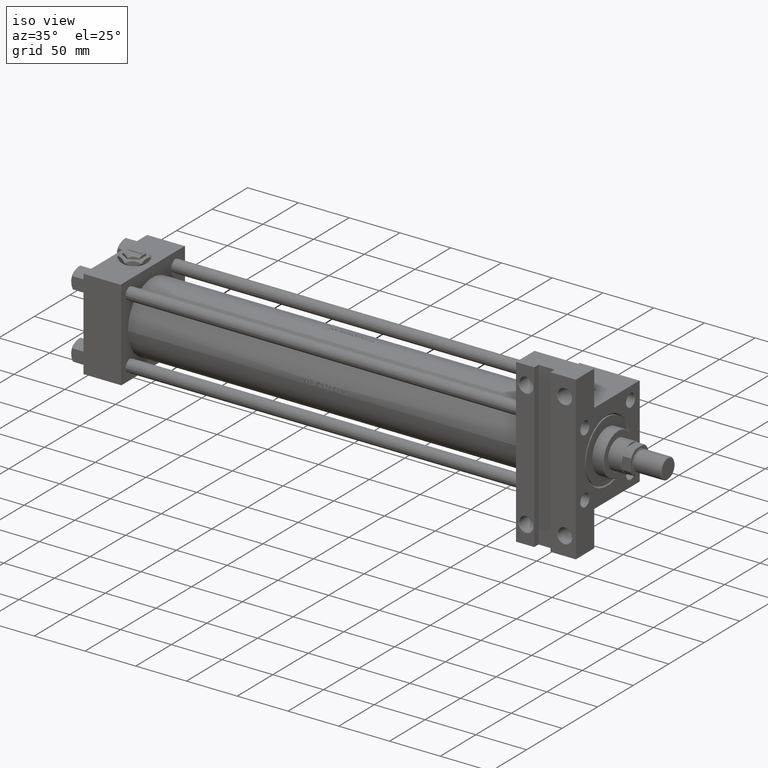
[diagram: clean part render]
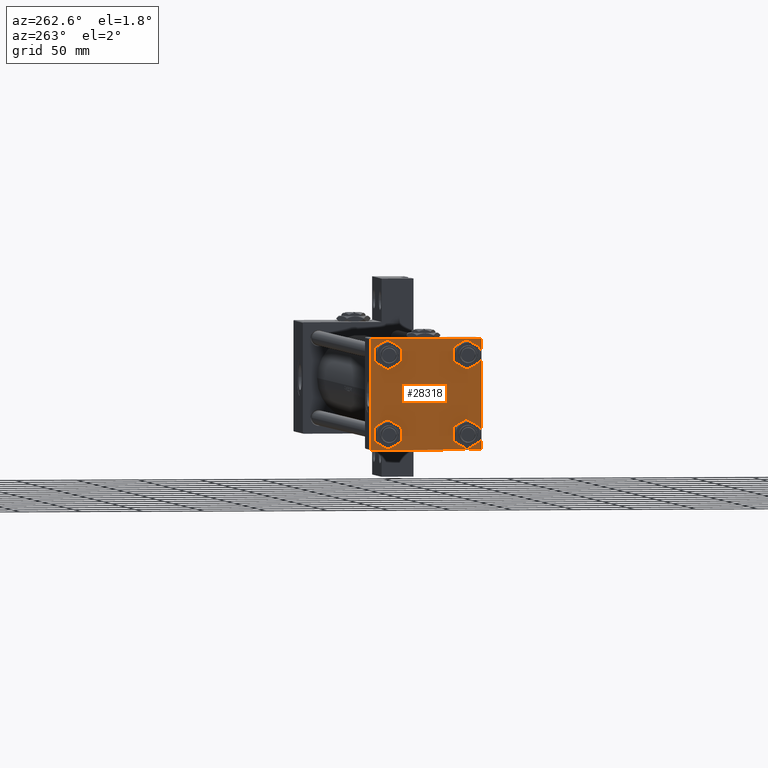
[diagram: tour spotlight — one face highlighted and labeled with its STEP entity id]
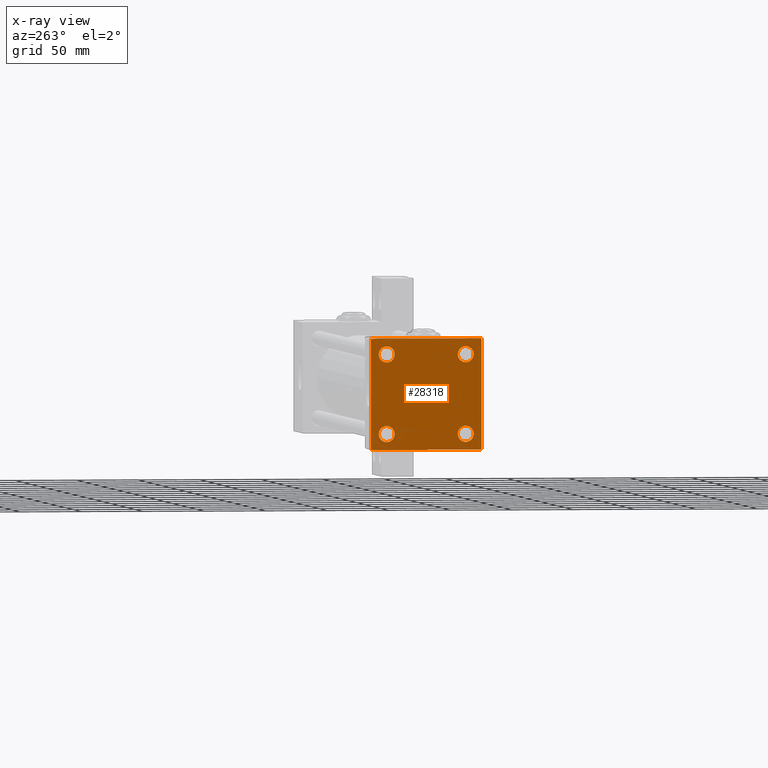
[diagram: x-ray of the same camera — body ghosted, this tour face saturated]
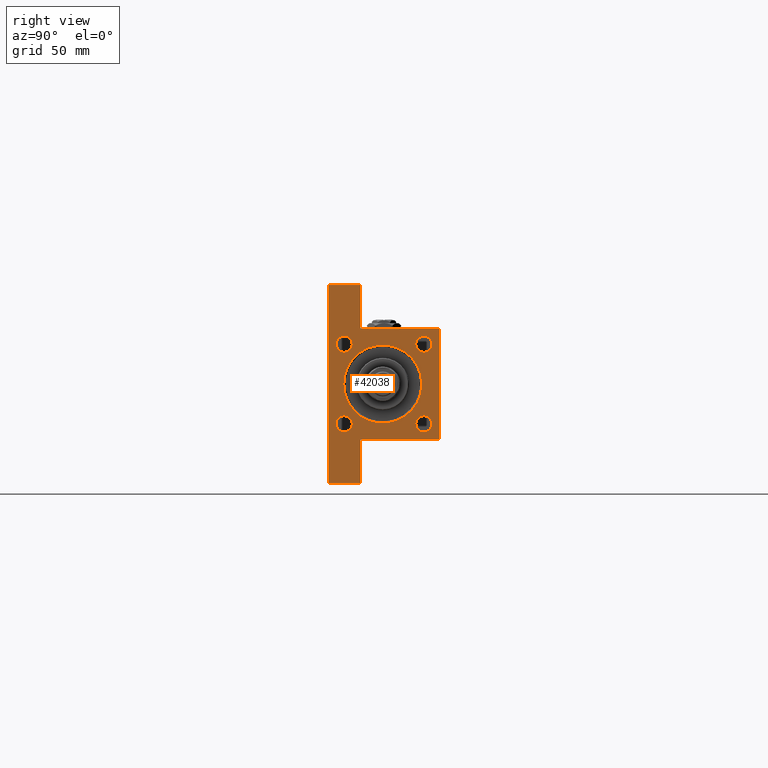
[diagram: tour spotlight — one face highlighted and labeled with its STEP entity id]
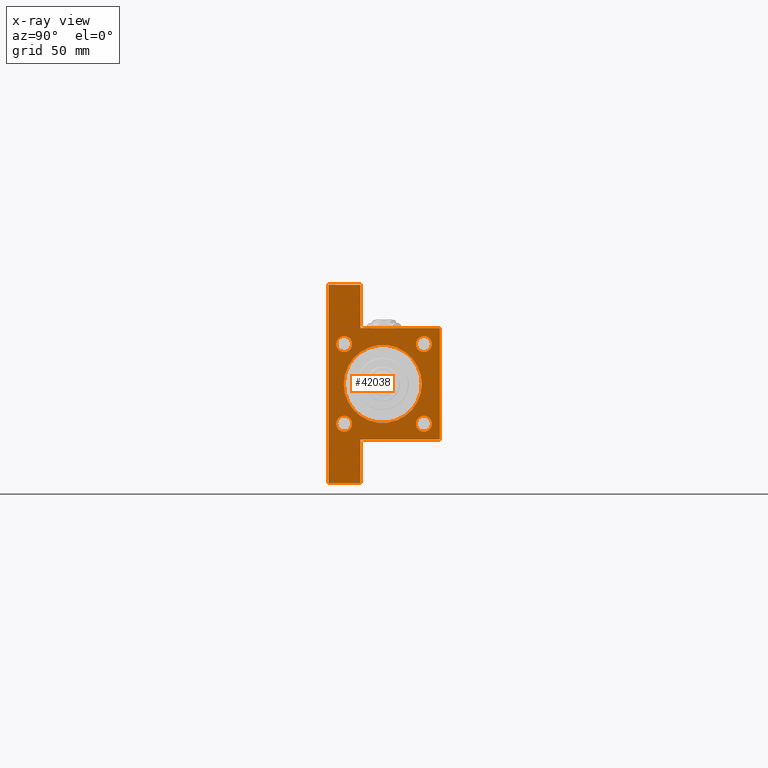
[diagram: x-ray of the same camera — body ghosted, this tour face saturated]
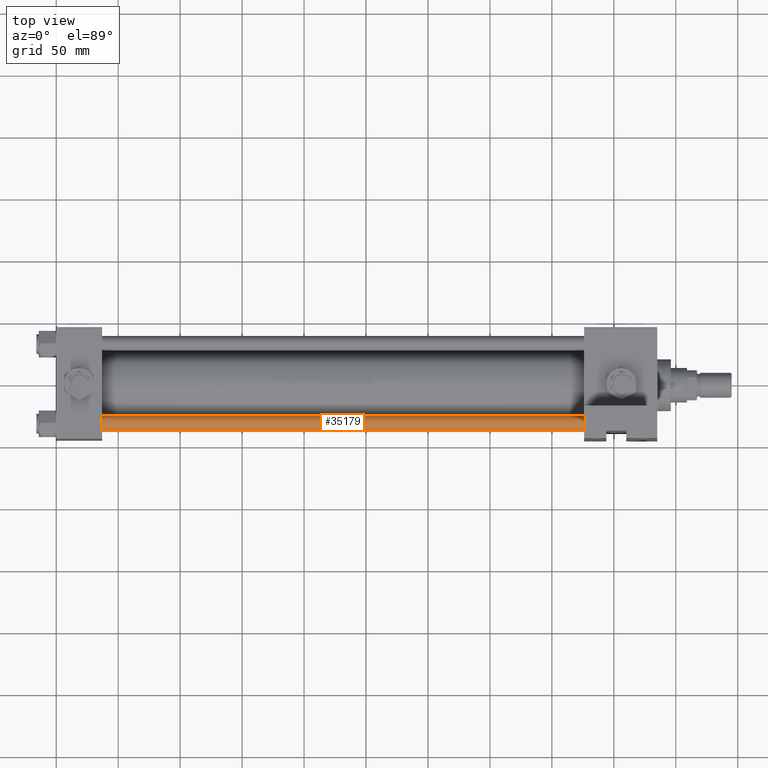
[diagram: tour spotlight — one face highlighted and labeled with its STEP entity id]
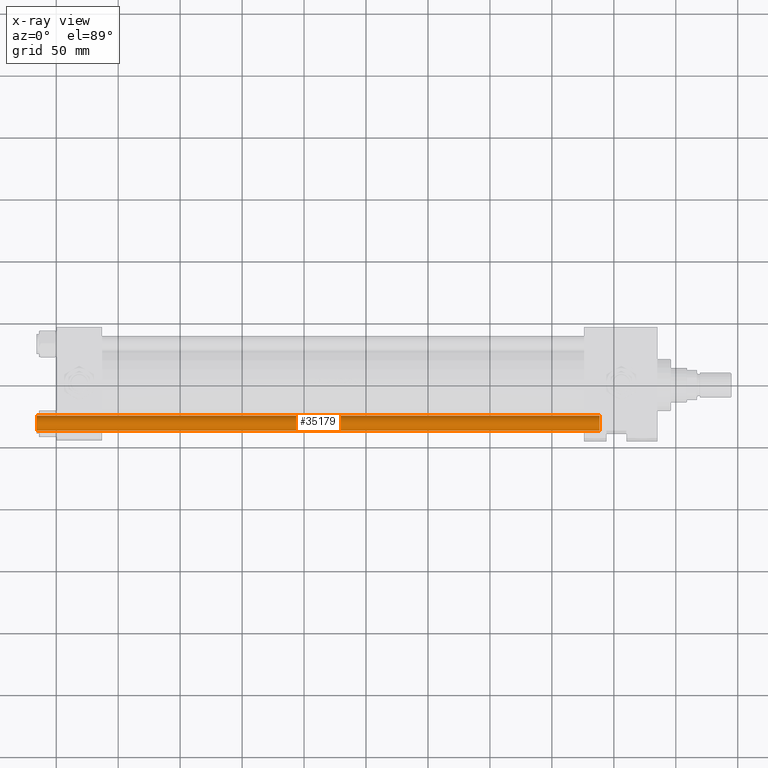
[diagram: x-ray of the same camera — body ghosted, this tour face saturated]
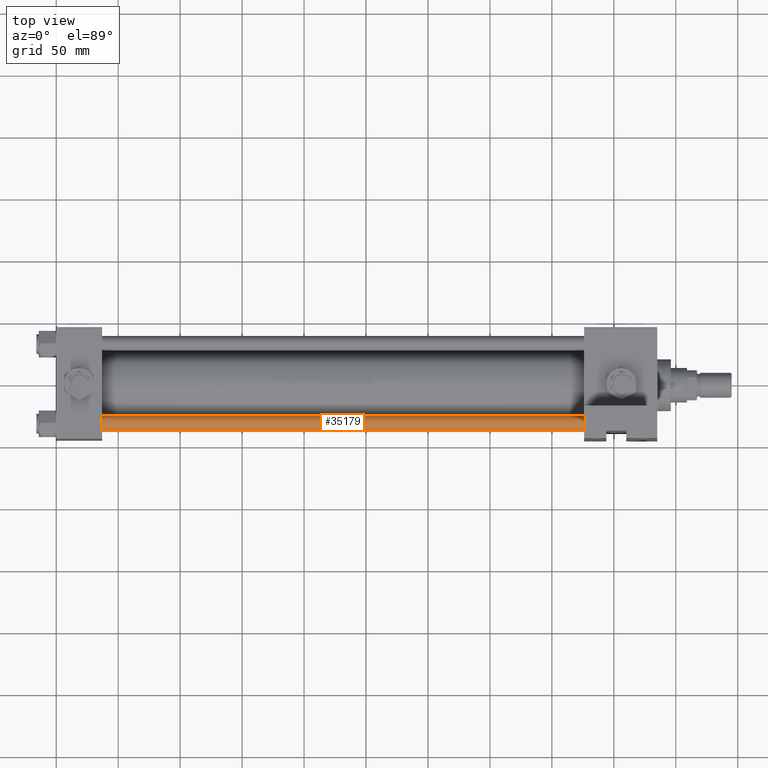
[diagram: tour spotlight — one face highlighted and labeled with its STEP entity id]
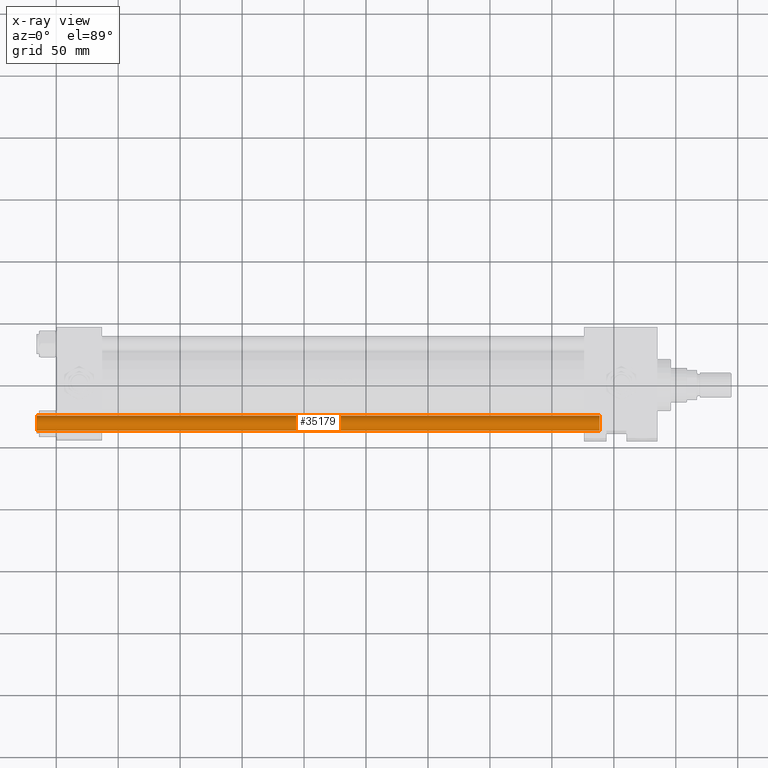
[diagram: x-ray of the same camera — body ghosted, this tour face saturated]
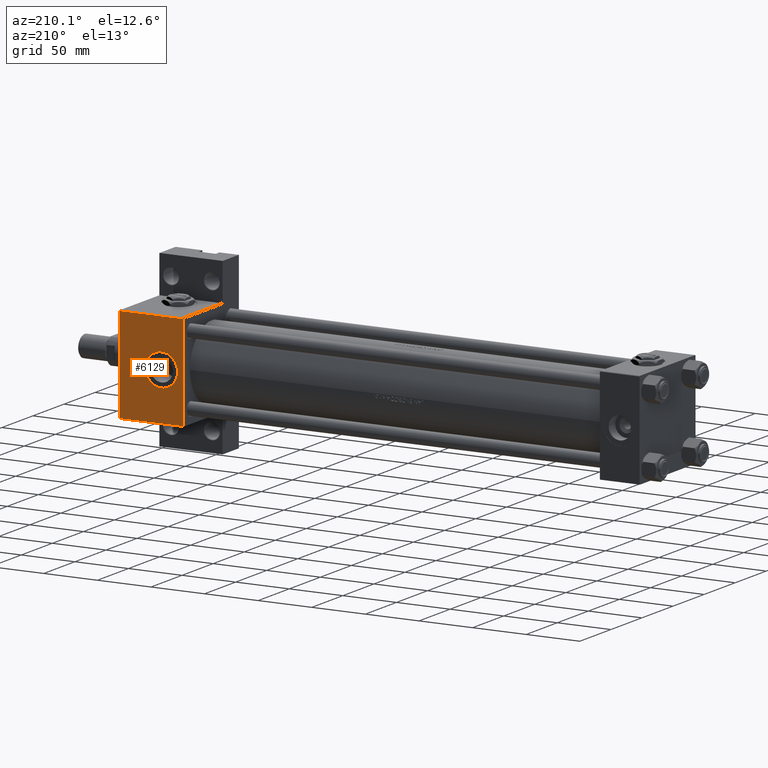
[diagram: tour spotlight — one face highlighted and labeled with its STEP entity id]
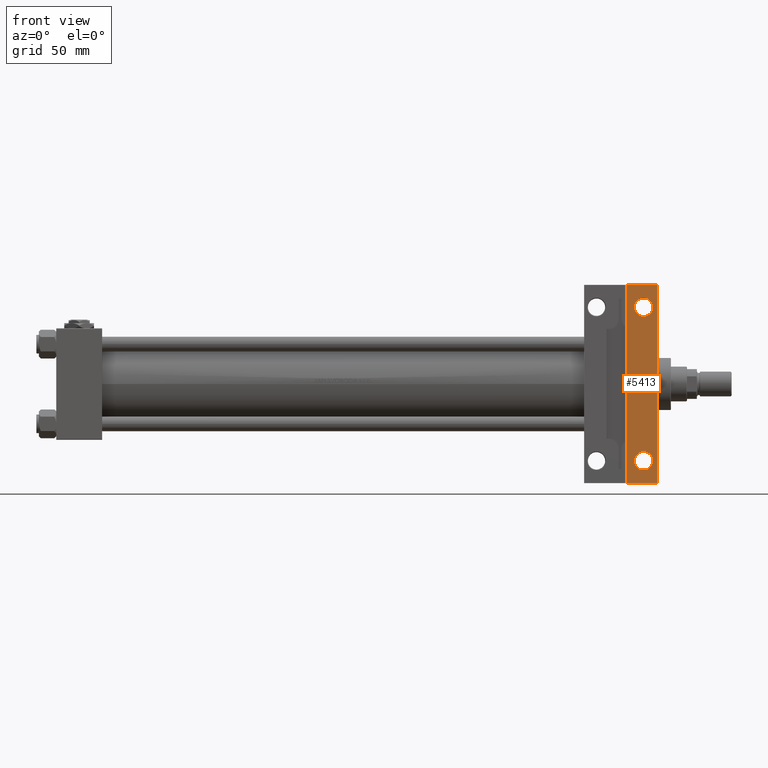
[diagram: tour spotlight — one face highlighted and labeled with its STEP entity id]
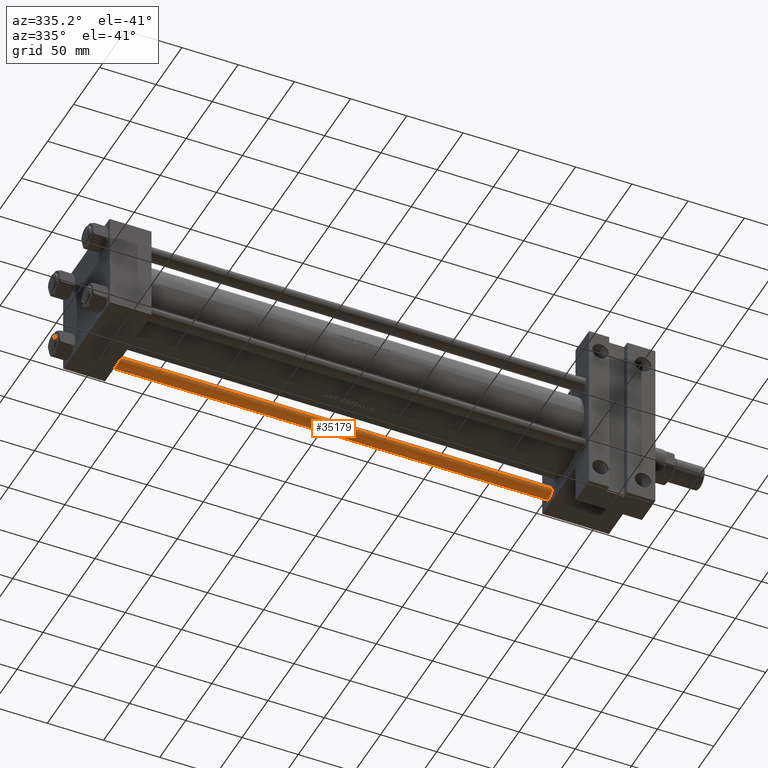
[diagram: tour spotlight — one face highlighted and labeled with its STEP entity id]
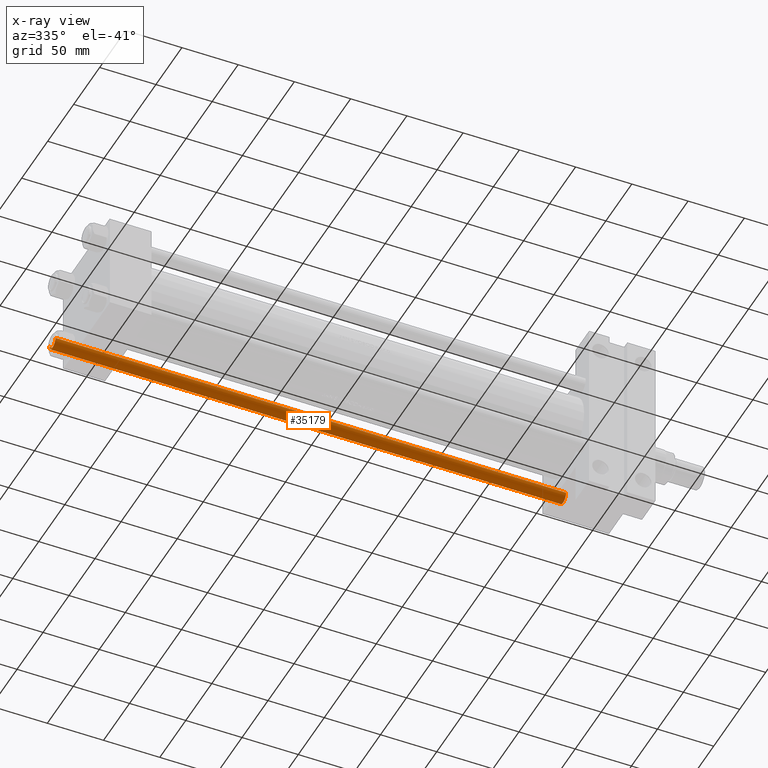
[diagram: x-ray of the same camera — body ghosted, this tour face saturated]
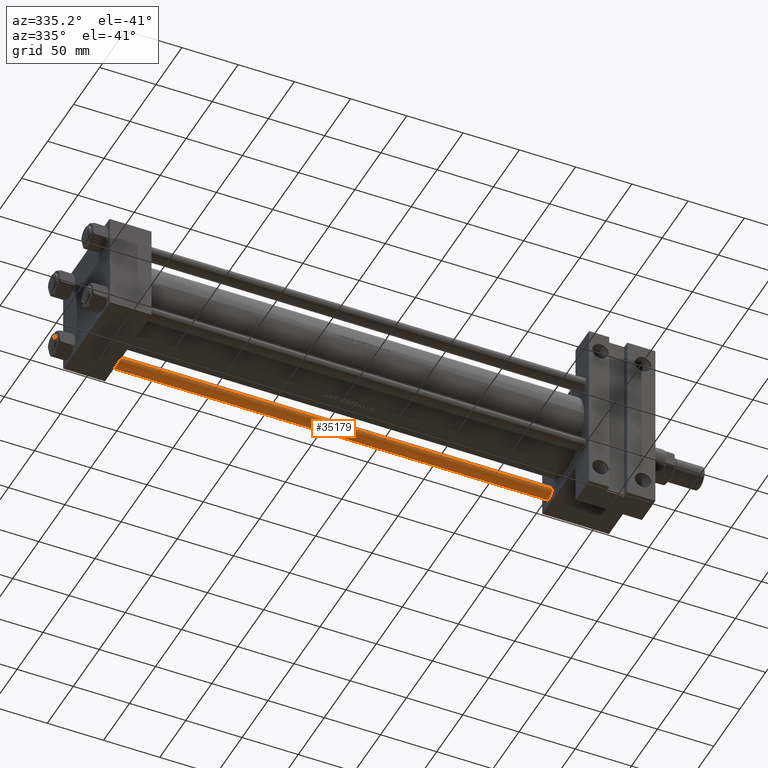
[diagram: tour spotlight — one face highlighted and labeled with its STEP entity id]
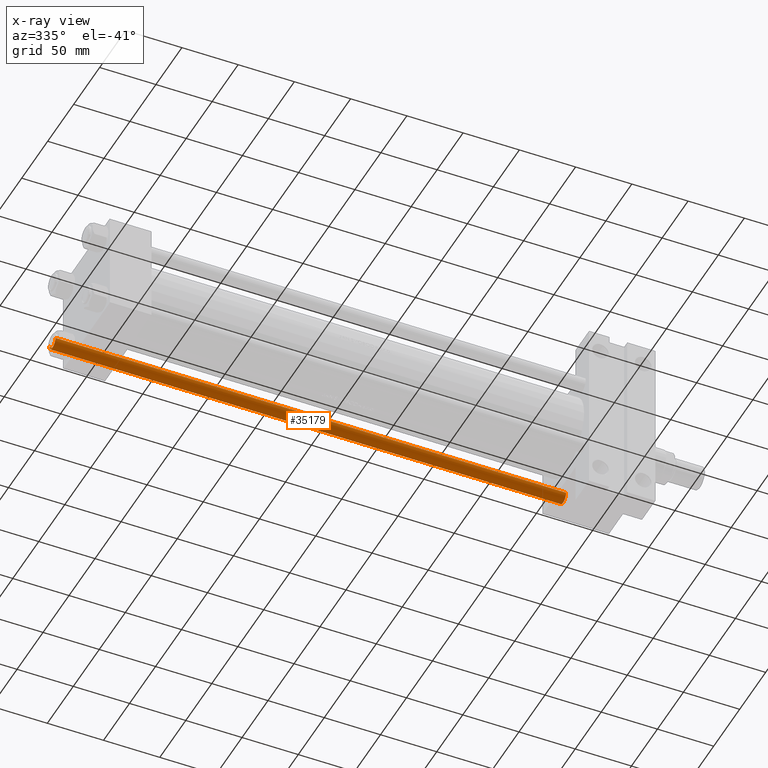
[diagram: x-ray of the same camera — body ghosted, this tour face saturated]
A machine part: a face-by-face anatomy tour. The part has 1217 B-rep faces; the first image is the clean iso view, then the 8 largest visible faces are spotlighted one at a time (largest first), each with its STEP entity span.

Face 1 — auxiliary view, entity #28318. An x-ray twin of the same camera follows (body ghosted, this face saturated) — the face is partly hidden behind the body. In plain terms, the highlighted planar face has unit normal (-1, 0, -0).
Definition (entity closure, byte-faithful):
#72 = EDGE_CURVE ( 'NONE', #46168, #1305, #38620, .T. ) ;
#348 = DIRECTION ( 'NONE',  ( 1.000000000000000000, -0.000000000000000000, 0.000000000000000000 ) ) ;
#504 = AXIS2_PLACEMENT_3D ( 'NONE', #7073, #38291, #3280 ) ;
#683 = DIRECTION ( 'NONE',  ( 1.000000000000000000, -0.000000000000000000, 0.000000000000000000 ) ) ;
#686 = CARTESIAN_POINT ( 'NONE',  ( 0.000000000000000000, 44.99999999999998579, -44.99999999999998579 ) ) ;
#972 = DIRECTION ( 'NONE',  ( -0.000000000000000000, 0.7071067811865425767, 0.7071067811865524577 ) ) ;
#988 = EDGE_LOOP ( 'NONE', ( #2975, #47064 ) ) ;
#1119 = ORIENTED_EDGE ( 'NONE', *, *, #5756, .T. ) ;
#1225 = VERTEX_POINT ( 'NONE', #20593 ) ;
#1305 = VERTEX_POINT ( 'NONE', #17779 ) ;
#1520 = LINE ( 'NONE', #5557, #37972 ) ;
#1943 = FACE_BOUND ( 'NONE', #29709, .T. ) ;
#2370 = CIRCLE ( 'NONE', #7218, 6.500000000000019540 ) ;
#2975 = ORIENTED_EDGE ( 'NONE', *, *, #15591, .T. ) ;
#3048 = ORIENTED_EDGE ( 'NONE', *, *, #9492, .T. ) ;
#3280 = DIRECTION ( 'NONE',  ( 0.000000000000000000, 0.000000000000000000, 1.000000000000000000 ) ) ;
#4248 = LINE ( 'NONE', #686, #11636 ) ;
#4816 = EDGE_CURVE ( 'NONE', #23674, #33636, #17120, .T. ) ;
#5011 = ORIENTED_EDGE ( 'NONE', *, *, #13331, .T. ) ;
#5065 = DIRECTION ( 'NONE',  ( 0.000000000000000000, 0.000000000000000000, -1.000000000000000000 ) ) ;
#5234 = DIRECTION ( 'NONE',  ( 0.000000000000000000, -1.000000000000000000, -1.541976423090495633E-16 ) ) ;
#5478 = EDGE_CURVE ( 'NONE', #25073, #15948, #24454, .T. ) ;
#5557 = CARTESIAN_POINT ( 'NONE',  ( 0.000000000000000000, 44.99999999999998579, 45.00000000000001421 ) ) ;
#5756 = EDGE_CURVE ( 'NONE', #39085, #1225, #33144, .T. ) ;
#5851 = VECTOR ( 'NONE', #972, 1000.000000000000114 ) ;
#6097 = CARTESIAN_POINT ( 'NONE',  ( 0.000000000000000000, 32.14999999999999147, -38.64999999999998437 ) ) ;
#6511 = DIRECTION ( 'NONE',  ( 0.000000000000000000, 0.000000000000000000, 1.000000000000000000 ) ) ;
#6762 = EDGE_LOOP ( 'NONE', ( #37748, #40030 ) ) ;
#7073 = CARTESIAN_POINT ( 'NONE',  ( 0.000000000000000000, -32.14999999999997726, -32.15000000000001279 ) ) ;
#7130 = CARTESIAN_POINT ( 'NONE',  ( 0.000000000000000000, -44.49999999999995737, -45.00000000000000000 ) ) ;
#7218 = AXIS2_PLACEMENT_3D ( 'NONE', #19128, #348, #27268 ) ;
#7891 = CARTESIAN_POINT ( 'NONE',  ( 0.000000000000000000, 44.49999999999998579, -44.99999999999998579 ) ) ;
#8398 = EDGE_LOOP ( 'NONE', ( #20074, #33976, #5011, #15777, #25028, #14771, #23602, #1119 ) ) ;
#9033 = DIRECTION ( 'NONE',  ( 0.000000000000000000, 0.000000000000000000, 1.000000000000000000 ) ) ;
#9492 = EDGE_CURVE ( 'NONE', #10059, #29954, #27050, .T. ) ;
#10037 = DIRECTION ( 'NONE',  ( 0.000000000000000000, 0.7071067811865474617, -0.7071067811865474617 ) ) ;
#10040 = PLANE ( 'NONE',  #25641 ) ;
#10059 = VERTEX_POINT ( 'NONE', #21771 ) ;
#11016 = DIRECTION ( 'NONE',  ( 0.000000000000000000, -0.7071067811865474617, 0.7071067811865474617 ) ) ;
#11636 = VECTOR ( 'NONE', #5234, 1000.000000000000000 ) ;
#13331 = EDGE_CURVE ( 'NONE', #30851, #29699, #4248, .T. ) ;
#14272 = CARTESIAN_POINT ( 'NONE',  ( 0.000000000000000000, -32.14999999999997726, 32.15000000000001279 ) ) ;
#14307 = LINE ( 'NONE', #37398, #34422 ) ;
#14359 = DIRECTION ( 'NONE',  ( -1.000000000000000000, 0.000000000000000000, -0.000000000000000000 ) ) ;
#14771 = ORIENTED_EDGE ( 'NONE', *, *, #15512, .T. ) ;
#15030 = DIRECTION ( 'NONE',  ( 0.000000000000000000, 7.709882115452476934E-17, -1.000000000000000000 ) ) ;
#15460 = DIRECTION ( 'NONE',  ( 0.000000000000000000, 0.000000000000000000, 1.000000000000000000 ) ) ;
#15512 = EDGE_CURVE ( 'NONE', #46168, #21240, #16935, .T. ) ;
#15591 = EDGE_CURVE ( 'NONE', #28768, #45783, #31810, .T. ) ;
#15777 = ORIENTED_EDGE ( 'NONE', *, *, #24126, .T. ) ;
#15948 = VERTEX_POINT ( 'NONE', #18134 ) ;
#16935 = LINE ( 'NONE', #17182, #5851 ) ;
#17120 = CIRCLE ( 'NONE', #48705, 6.499999999999977796 ) ;
#17182 = CARTESIAN_POINT ( 'NONE',  ( -0.000000000000000000, -44.75000000000029843, 44.74999999999967315 ) ) ;
#17660 = FACE_BOUND ( 'NONE', #6762, .T. ) ;
#17779 = CARTESIAN_POINT ( 'NONE',  ( 0.000000000000000000, -45.00000000000000000, -44.49999999999995737 ) ) ;
#18134 = CARTESIAN_POINT ( 'NONE',  ( 0.000000000000000000, 32.14999999999999147, 38.64999999999999147 ) ) ;
#19128 = CARTESIAN_POINT ( 'NONE',  ( 0.000000000000000000, -32.14999999999997726, 32.15000000000001279 ) ) ;
#20074 = ORIENTED_EDGE ( 'NONE', *, *, #38446, .T. ) ;
#20158 = DIRECTION ( 'NONE',  ( 0.000000000000000000, 0.000000000000000000, 1.000000000000000000 ) ) ;
#20593 = CARTESIAN_POINT ( 'NONE',  ( 0.000000000000000000, 44.99999999999998579, 44.50000000000001421 ) ) ;
#20903 = AXIS2_PLACEMENT_3D ( 'NONE', #31220, #46659, #15460 ) ;
#21022 = VECTOR ( 'NONE', #31142, 1000.000000000000114 ) ;
#21240 = VERTEX_POINT ( 'NONE', #45295 ) ;
#21287 = CARTESIAN_POINT ( 'NONE',  ( 0.000000000000000000, 44.99999999999998579, -44.49999999999995737 ) ) ;
#21771 = CARTESIAN_POINT ( 'NONE',  ( 0.000000000000000000, -32.14999999999997726, 25.64999999999999147 ) ) ;
#22658 = ORIENTED_EDGE ( 'NONE', *, *, #5478, .T. ) ;
#23082 = ORIENTED_EDGE ( 'NONE', *, *, #23149, .T. ) ;
#23149 = EDGE_CURVE ( 'NONE', #15948, #25073, #49774, .T. ) ;
#23602 = ORIENTED_EDGE ( 'NONE', *, *, #29770, .F. ) ;
#23674 = VERTEX_POINT ( 'NONE', #38836 ) ;
#24126 = EDGE_CURVE ( 'NONE', #29699, #1305, #14307, .T. ) ;
#24454 = CIRCLE ( 'NONE', #30967, 6.499999999999977796 ) ;
#24727 = CARTESIAN_POINT ( 'NONE',  ( 0.000000000000000000, 32.14999999999999147, 32.15000000000000568 ) ) ;
#24932 = CARTESIAN_POINT ( 'NONE',  ( 0.000000000000000000, 44.49999999999998579, 45.00000000000001421 ) ) ;
#25028 = ORIENTED_EDGE ( 'NONE', *, *, #72, .F. ) ;
#25073 = VERTEX_POINT ( 'NONE', #25538 ) ;
#25422 = DIRECTION ( 'NONE',  ( 1.000000000000000000, -0.000000000000000000, 0.000000000000000000 ) ) ;
#25538 = CARTESIAN_POINT ( 'NONE',  ( 0.000000000000000000, 32.14999999999999147, 25.65000000000002700 ) ) ;
#25641 = AXIS2_PLACEMENT_3D ( 'NONE', #48624, #14359, #36693 ) ;
#26057 = FACE_BOUND ( 'NONE', #988, .T. ) ;
#26457 = CIRCLE ( 'NONE', #504, 6.499999999999977796 ) ;
#27050 = CIRCLE ( 'NONE', #35142, 6.500000000000019540 ) ;
#27268 = DIRECTION ( 'NONE',  ( 0.000000000000000000, 0.000000000000000000, 1.000000000000000000 ) ) ;
#27978 = EDGE_CURVE ( 'NONE', #45783, #28768, #26457, .T. ) ;
#28120 = VECTOR ( 'NONE', #35536, 1000.000000000000000 ) ;
#28318 = ADVANCED_FACE ( 'NONE', ( #1943, #26057, #17660, #41251, #49127 ), #10040, .T. ) ;
#28768 = VERTEX_POINT ( 'NONE', #49582 ) ;
#28798 = DIRECTION ( 'NONE',  ( 1.000000000000000000, -0.000000000000000000, 0.000000000000000000 ) ) ;
#29501 = AXIS2_PLACEMENT_3D ( 'NONE', #24727, #28798, #20158 ) ;
#29699 = VERTEX_POINT ( 'NONE', #7130 ) ;
#29709 = EDGE_LOOP ( 'NONE', ( #42261, #3048 ) ) ;
#29770 = EDGE_CURVE ( 'NONE', #39085, #21240, #30766, .T. ) ;
#29780 = DIRECTION ( 'NONE',  ( 0.000000000000000000, 0.000000000000000000, 1.000000000000000000 ) ) ;
#29954 = VERTEX_POINT ( 'NONE', #32977 ) ;
#30766 = LINE ( 'NONE', #46211, #28120 ) ;
#30851 = VERTEX_POINT ( 'NONE', #7891 ) ;
#30967 = AXIS2_PLACEMENT_3D ( 'NONE', #40368, #25422, #42077 ) ;
#31142 = DIRECTION ( 'NONE',  ( -0.000000000000000000, -0.7071067811865474617, -0.7071067811865474617 ) ) ;
#31220 = CARTESIAN_POINT ( 'NONE',  ( 0.000000000000000000, 32.14999999999999147, -32.15000000000000568 ) ) ;
#31810 = CIRCLE ( 'NONE', #35850, 6.499999999999977796 ) ;
#32977 = CARTESIAN_POINT ( 'NONE',  ( 0.000000000000000000, -32.14999999999997726, 38.65000000000003411 ) ) ;
#33144 = LINE ( 'NONE', #45059, #39043 ) ;
#33420 = DIRECTION ( 'NONE',  ( 1.000000000000000000, -0.000000000000000000, 0.000000000000000000 ) ) ;
#33636 = VERTEX_POINT ( 'NONE', #6097 ) ;
#33879 = CIRCLE ( 'NONE', #20903, 6.499999999999977796 ) ;
#33976 = ORIENTED_EDGE ( 'NONE', *, *, #38654, .T. ) ;
#34409 = CARTESIAN_POINT ( 'NONE',  ( 0.000000000000000000, -32.14999999999997726, -38.64999999999999147 ) ) ;
#34422 = VECTOR ( 'NONE', #11016, 1000.000000000000114 ) ;
#34676 = CARTESIAN_POINT ( 'NONE',  ( 0.000000000000000000, 44.74999999999998579, -44.74999999999998579 ) ) ;
#34846 = CARTESIAN_POINT ( 'NONE',  ( 0.000000000000000000, -45.00000000000000711, 44.49999999999997158 ) ) ;
#35142 = AXIS2_PLACEMENT_3D ( 'NONE', #14272, #37872, #29780 ) ;
#35450 = CARTESIAN_POINT ( 'NONE',  ( 0.000000000000000000, 32.14999999999999147, -32.15000000000000568 ) ) ;
#35536 = DIRECTION ( 'NONE',  ( 0.000000000000000000, -1.000000000000000000, -1.541976423090495387E-16 ) ) ;
#35850 = AXIS2_PLACEMENT_3D ( 'NONE', #41269, #33420, #6511 ) ;
#36693 = DIRECTION ( 'NONE',  ( -0.000000000000000000, 0.000000000000000000, 1.000000000000000000 ) ) ;
#37398 = CARTESIAN_POINT ( 'NONE',  ( 0.000000000000000000, -44.74999999999998579, -44.74999999999998579 ) ) ;
#37748 = ORIENTED_EDGE ( 'NONE', *, *, #4816, .T. ) ;
#37872 = DIRECTION ( 'NONE',  ( 1.000000000000000000, -0.000000000000000000, 0.000000000000000000 ) ) ;
#37972 = VECTOR ( 'NONE', #5065, 1000.000000000000000 ) ;
#38291 = DIRECTION ( 'NONE',  ( 1.000000000000000000, -0.000000000000000000, 0.000000000000000000 ) ) ;
#38446 = EDGE_CURVE ( 'NONE', #1225, #46534, #1520, .T. ) ;
#38620 = LINE ( 'NONE', #45982, #47725 ) ;
#38654 = EDGE_CURVE ( 'NONE', #46534, #30851, #47068, .T. ) ;
#38836 = CARTESIAN_POINT ( 'NONE',  ( 0.000000000000000000, 32.14999999999999147, -25.65000000000002700 ) ) ;
#38960 = EDGE_CURVE ( 'NONE', #29954, #10059, #2370, .T. ) ;
#39043 = VECTOR ( 'NONE', #10037, 1000.000000000000114 ) ;
#39085 = VERTEX_POINT ( 'NONE', #24932 ) ;
#40030 = ORIENTED_EDGE ( 'NONE', *, *, #42996, .T. ) ;
#40368 = CARTESIAN_POINT ( 'NONE',  ( 0.000000000000000000, 32.14999999999999147, 32.15000000000000568 ) ) ;
#41251 = FACE_BOUND ( 'NONE', #42715, .T. ) ;
#41269 = CARTESIAN_POINT ( 'NONE',  ( 0.000000000000000000, -32.14999999999997726, -32.15000000000001279 ) ) ;
#42077 = DIRECTION ( 'NONE',  ( 0.000000000000000000, 0.000000000000000000, 1.000000000000000000 ) ) ;
#42261 = ORIENTED_EDGE ( 'NONE', *, *, #38960, .T. ) ;
#42715 = EDGE_LOOP ( 'NONE', ( #23082, #22658 ) ) ;
#42996 = EDGE_CURVE ( 'NONE', #33636, #23674, #33879, .T. ) ;
#45059 = CARTESIAN_POINT ( 'NONE',  ( 0.000000000000000000, 44.74999999999999289, 44.74999999999999289 ) ) ;
#45295 = CARTESIAN_POINT ( 'NONE',  ( 0.000000000000000000, -44.49999999999995737, 45.00000000000000000 ) ) ;
#45783 = VERTEX_POINT ( 'NONE', #34409 ) ;
#45982 = CARTESIAN_POINT ( 'NONE',  ( 0.000000000000000000, -45.00000000000000711, 45.00000000000000000 ) ) ;
#46168 = VERTEX_POINT ( 'NONE', #34846 ) ;
#46211 = CARTESIAN_POINT ( 'NONE',  ( 0.000000000000000000, 44.99999999999998579, 45.00000000000001421 ) ) ;
#46534 = VERTEX_POINT ( 'NONE', #21287 ) ;
#46659 = DIRECTION ( 'NONE',  ( 1.000000000000000000, -0.000000000000000000, 0.000000000000000000 ) ) ;
#47064 = ORIENTED_EDGE ( 'NONE', *, *, #27978, .T. ) ;
#47068 = LINE ( 'NONE', #34676, #21022 ) ;
#47725 = VECTOR ( 'NONE', #15030, 1000.000000000000000 ) ;
#48624 = CARTESIAN_POINT ( 'NONE',  ( 0.000000000000000000, 0.000000000000000000, 0.000000000000000000 ) ) ;
#48705 = AXIS2_PLACEMENT_3D ( 'NONE', #35450, #683, #9033 ) ;
#49127 = FACE_OUTER_BOUND ( 'NONE', #8398, .T. ) ;
#49582 = CARTESIAN_POINT ( 'NONE',  ( 0.000000000000000000, -32.14999999999997726, -25.65000000000003411 ) ) ;
#49774 = CIRCLE ( 'NONE', #29501, 6.499999999999977796 ) ;

Face 2 — right view, entity #42038. An x-ray twin of the same camera follows (body ghosted, this face saturated) — the face is partly hidden behind the body. In plain terms, the highlighted planar face has unit normal (-1, 0, -0).
Definition (entity closure, byte-faithful):
#40 = DIRECTION ( 'NONE',  ( 0.000000000000000000, 0.000000000000000000, 1.000000000000000000 ) ) ;
#161 = CIRCLE ( 'NONE', #34998, 6.500000000000061284 ) ;
#193 = VECTOR ( 'NONE', #38427, 1000.000000000000000 ) ;
#212 = DIRECTION ( 'NONE',  ( 0.000000000000000000, 0.000000000000000000, 1.000000000000000000 ) ) ;
#824 = CARTESIAN_POINT ( 'NONE',  ( 485.0000000000000000, 3.857637417314158745E-15, 30.49999999999997158 ) ) ;
#913 = ORIENTED_EDGE ( 'NONE', *, *, #32758, .T. ) ;
#1091 = VECTOR ( 'NONE', #10979, 1000.000000000000000 ) ;
#1671 = AXIS2_PLACEMENT_3D ( 'NONE', #40380, #5869, #25179 ) ;
#1830 = FACE_OUTER_BOUND ( 'NONE', #15347, .T. ) ;
#1894 = CARTESIAN_POINT ( 'NONE',  ( 485.0000000000000000, 45.00000000000001421, 45.00000000000000000 ) ) ;
#2136 = CARTESIAN_POINT ( 'NONE',  ( 485.0000000000000000, -44.49999999999991473, 44.99999999999998579 ) ) ;
#2296 = DIRECTION ( 'NONE',  ( 0.000000000000000000, -1.000000000000000000, 0.000000000000000000 ) ) ;
#2314 = DIRECTION ( 'NONE',  ( 0.000000000000000000, 0.000000000000000000, 1.000000000000000000 ) ) ;
#2631 = EDGE_CURVE ( 'NONE', #25708, #29097, #43746, .T. ) ;
#2680 = VECTOR ( 'NONE', #40784, 1000.000000000000000 ) ;
#3011 = CARTESIAN_POINT ( 'NONE',  ( 485.0000000000000000, 79.99999999999994316, -19.00000000000000000 ) ) ;
#3112 = LINE ( 'NONE', #10463, #1091 ) ;
#3121 = VECTOR ( 'NONE', #2296, 1000.000000000000000 ) ;
#3495 = DIRECTION ( 'NONE',  ( -1.000000000000000000, -0.000000000000000000, -0.000000000000000000 ) ) ;
#3742 = VERTEX_POINT ( 'NONE', #44040 ) ;
#3858 = VECTOR ( 'NONE', #21994, 1000.000000000000000 ) ;
#4294 = VERTEX_POINT ( 'NONE', #6345 ) ;
#4472 = CARTESIAN_POINT ( 'NONE',  ( 485.0000000000000000, 44.49999999999995737, 45.00000000000000000 ) ) ;
#5251 = DIRECTION ( 'NONE',  ( -1.000000000000000000, -0.000000000000000000, -0.000000000000000000 ) ) ;
#5371 = CIRCLE ( 'NONE', #32161, 6.500000000000061284 ) ;
#5869 = DIRECTION ( 'NONE',  ( -1.000000000000000000, 0.000000000000000000, -0.000000000000000000 ) ) ;
#5995 = LINE ( 'NONE', #10559, #3858 ) ;
#6118 = PLANE ( 'NONE',  #1671 ) ;
#6323 = EDGE_CURVE ( 'NONE', #3742, #4294, #161, .T. ) ;
#6345 = CARTESIAN_POINT ( 'NONE',  ( 485.0000000000000000, 32.14999999999999147, 25.64999999999994529 ) ) ;
#6900 = CARTESIAN_POINT ( 'NONE',  ( 485.0000000000000000, -32.14999999999999147, 25.64999999999993108 ) ) ;
#6913 = EDGE_CURVE ( 'NONE', #42046, #49358, #16316, .T. ) ;
#7149 = VERTEX_POINT ( 'NONE', #42166 ) ;
#7461 = CARTESIAN_POINT ( 'NONE',  ( 485.0000000000000000, 79.99999999999994316, -19.00000000000000000 ) ) ;
#7786 = CARTESIAN_POINT ( 'NONE',  ( 485.0000000000000000, 32.14999999999999147, 32.15000000000000568 ) ) ;
#8427 = ORIENTED_EDGE ( 'NONE', *, *, #26142, .T. ) ;
#8580 = ORIENTED_EDGE ( 'NONE', *, *, #6913, .F. ) ;
#9190 = ORIENTED_EDGE ( 'NONE', *, *, #10051, .T. ) ;
#9228 = EDGE_CURVE ( 'NONE', #14410, #42475, #32693, .T. ) ;
#9298 = CARTESIAN_POINT ( 'NONE',  ( 485.0000000000000000, -80.00000000000005684, -45.00000000000000000 ) ) ;
#9396 = VERTEX_POINT ( 'NONE', #48037 ) ;
#9557 = EDGE_CURVE ( 'NONE', #17249, #44220, #3112, .T. ) ;
#9824 = CARTESIAN_POINT ( 'NONE',  ( 485.0000000000000000, -45.00000000000000000, 44.49999999999998579 ) ) ;
#9837 = DIRECTION ( 'NONE',  ( -0.000000000000000000, -1.000000000000000000, -0.000000000000000000 ) ) ;
#10051 = EDGE_CURVE ( 'NONE', #31769, #7149, #10340, .T. ) ;
#10340 = LINE ( 'NONE', #25847, #41611 ) ;
#10463 = CARTESIAN_POINT ( 'NONE',  ( 485.0000000000000000, 44.49999999999995737, 45.00000000000000000 ) ) ;
#10559 = CARTESIAN_POINT ( 'NONE',  ( 485.0000000000000000, 45.00000000000001421, 45.00000000000000000 ) ) ;
#10979 = DIRECTION ( 'NONE',  ( 0.000000000000000000, -0.7071067811865081598, 0.7071067811865867636 ) ) ;
#10980 = DIRECTION ( 'NONE',  ( -1.000000000000000000, -0.000000000000000000, -0.000000000000000000 ) ) ;
#11021 = EDGE_CURVE ( 'NONE', #42046, #15206, #25608, .T. ) ;
#11077 = CARTESIAN_POINT ( 'NONE',  ( 485.0000000000000000, 32.14999999999999147, -25.64999999999994529 ) ) ;
#11080 = EDGE_CURVE ( 'NONE', #16950, #24838, #14073, .T. ) ;
#11136 = DIRECTION ( 'NONE',  ( -1.000000000000000000, -0.000000000000000000, -0.000000000000000000 ) ) ;
#11440 = CARTESIAN_POINT ( 'NONE',  ( 485.0000000000000000, 32.14999999999999147, -38.65000000000007674 ) ) ;
#11711 = DIRECTION ( 'NONE',  ( -1.000000000000000000, -0.000000000000000000, -0.000000000000000000 ) ) ;
#12074 = ORIENTED_EDGE ( 'NONE', *, *, #6323, .T. ) ;
#12112 = CARTESIAN_POINT ( 'NONE',  ( 485.0000000000000000, -32.14999999999999147, 32.14999999999999147 ) ) ;
#14073 = CIRCLE ( 'NONE', #42453, 6.500000000000061284 ) ;
#14410 = VERTEX_POINT ( 'NONE', #2136 ) ;
#15028 = ORIENTED_EDGE ( 'NONE', *, *, #36819, .T. ) ;
#15089 = VERTEX_POINT ( 'NONE', #29509 ) ;
#15206 = VERTEX_POINT ( 'NONE', #32499 ) ;
#15347 = EDGE_LOOP ( 'NONE', ( #21082, #25713, #41984, #29236, #15028, #9190, #36083, #20994, #8580, #36598 ) ) ;
#15696 = CARTESIAN_POINT ( 'NONE',  ( 485.0000000000000000, 45.00000000000001421, 44.49999999999988631 ) ) ;
#16316 = LINE ( 'NONE', #7461, #193 ) ;
#16388 = EDGE_LOOP ( 'NONE', ( #41446, #8427 ) ) ;
#16617 = LINE ( 'NONE', #1894, #20182 ) ;
#16698 = DIRECTION ( 'NONE',  ( 0.000000000000000000, 0.000000000000000000, -1.000000000000000000 ) ) ;
#16950 = VERTEX_POINT ( 'NONE', #6900 ) ;
#17249 = VERTEX_POINT ( 'NONE', #15696 ) ;
#17569 = ORIENTED_EDGE ( 'NONE', *, *, #25549, .T. ) ;
#17816 = AXIS2_PLACEMENT_3D ( 'NONE', #24554, #5251, #20733 ) ;
#17842 = ORIENTED_EDGE ( 'NONE', *, *, #22103, .T. ) ;
#18085 = EDGE_LOOP ( 'NONE', ( #38858, #17569 ) ) ;
#18131 = EDGE_LOOP ( 'NONE', ( #913, #12074 ) ) ;
#18946 = CIRCLE ( 'NONE', #33494, 6.500000000000061284 ) ;
#19662 = VECTOR ( 'NONE', #41057, 1000.000000000000000 ) ;
#19871 = ORIENTED_EDGE ( 'NONE', *, *, #39844, .T. ) ;
#20182 = VECTOR ( 'NONE', #29058, 1000.000000000000000 ) ;
#20612 = FACE_BOUND ( 'NONE', #34955, .T. ) ;
#20733 = DIRECTION ( 'NONE',  ( 0.000000000000000000, 0.000000000000000000, 1.000000000000000000 ) ) ;
#20994 = ORIENTED_EDGE ( 'NONE', *, *, #47960, .F. ) ;
#21082 = ORIENTED_EDGE ( 'NONE', *, *, #34652, .F. ) ;
#21599 = DIRECTION ( 'NONE',  ( -1.000000000000000000, -0.000000000000000000, -0.000000000000000000 ) ) ;
#21627 = VERTEX_POINT ( 'NONE', #824 ) ;
#21994 = DIRECTION ( 'NONE',  ( 0.000000000000000000, 0.000000000000000000, -1.000000000000000000 ) ) ;
#22103 = EDGE_CURVE ( 'NONE', #29097, #25708, #18946, .T. ) ;
#22184 = DIRECTION ( 'NONE',  ( 0.000000000000000000, 0.000000000000000000, 1.000000000000000000 ) ) ;
#23306 = DIRECTION ( 'NONE',  ( -1.000000000000000000, -0.000000000000000000, -0.000000000000000000 ) ) ;
#23405 = DIRECTION ( 'NONE',  ( -1.000000000000000000, -0.000000000000000000, -0.000000000000000000 ) ) ;
#24554 = CARTESIAN_POINT ( 'NONE',  ( 485.0000000000000000, 32.14999999999999147, -32.15000000000000568 ) ) ;
#24575 = LINE ( 'NONE', #36720, #30651 ) ;
#24675 = FACE_BOUND ( 'NONE', #27719, .T. ) ;
#24838 = VERTEX_POINT ( 'NONE', #33417 ) ;
#25179 = DIRECTION ( 'NONE',  ( -0.000000000000000000, 0.000000000000000000, 1.000000000000000000 ) ) ;
#25549 = EDGE_CURVE ( 'NONE', #24838, #16950, #27153, .T. ) ;
#25608 = LINE ( 'NONE', #3011, #19662 ) ;
#25708 = VERTEX_POINT ( 'NONE', #11440 ) ;
#25713 = ORIENTED_EDGE ( 'NONE', *, *, #9557, .T. ) ;
#25836 = VERTEX_POINT ( 'NONE', #9298 ) ;
#25847 = CARTESIAN_POINT ( 'NONE',  ( 485.0000000000000000, -80.00000000000005684, -19.00000000000000000 ) ) ;
#26001 = CARTESIAN_POINT ( 'NONE',  ( 485.0000000000000000, -32.15000000000001279, -32.15000000000000568 ) ) ;
#26142 = EDGE_CURVE ( 'NONE', #9396, #35627, #43384, .T. ) ;
#26477 = DIRECTION ( 'NONE',  ( 0.000000000000000000, 0.000000000000000000, 1.000000000000000000 ) ) ;
#26560 = CIRCLE ( 'NONE', #30625, 31.49999999999997158 ) ;
#27057 = DIRECTION ( 'NONE',  ( 0.000000000000000000, 7.709882115452478166E-17, -1.000000000000000000 ) ) ;
#27153 = CIRCLE ( 'NONE', #33615, 6.500000000000061284 ) ;
#27229 = DIRECTION ( 'NONE',  ( 0.000000000000000000, 0.000000000000000000, 1.000000000000000000 ) ) ;
#27390 = CARTESIAN_POINT ( 'NONE',  ( 485.0000000000000000, 0.000000000000000000, -1.000000000000000888 ) ) ;
#27479 = CARTESIAN_POINT ( 'NONE',  ( 485.0000000000000000, 0.000000000000000000, -1.000000000000000888 ) ) ;
#27576 = CIRCLE ( 'NONE', #28360, 31.49999999999997158 ) ;
#27615 = CARTESIAN_POINT ( 'NONE',  ( 485.0000000000000000, 79.99999999999994316, -45.00000000000000000 ) ) ;
#27719 = EDGE_LOOP ( 'NONE', ( #29012, #17842 ) ) ;
#28360 = AXIS2_PLACEMENT_3D ( 'NONE', #27479, #10980, #26477 ) ;
#29012 = ORIENTED_EDGE ( 'NONE', *, *, #2631, .T. ) ;
#29058 = DIRECTION ( 'NONE',  ( 0.000000000000000000, -1.000000000000000000, -1.541976423090495140E-16 ) ) ;
#29097 = VERTEX_POINT ( 'NONE', #11077 ) ;
#29151 = AXIS2_PLACEMENT_3D ( 'NONE', #36421, #34082, #30795 ) ;
#29236 = ORIENTED_EDGE ( 'NONE', *, *, #9228, .T. ) ;
#29509 = CARTESIAN_POINT ( 'NONE',  ( 485.0000000000000000, 0.000000000000000000, -32.49999999999997158 ) ) ;
#29890 = CARTESIAN_POINT ( 'NONE',  ( 485.0000000000000000, -44.99999999999999289, -18.99999999999997513 ) ) ;
#30625 = AXIS2_PLACEMENT_3D ( 'NONE', #27390, #11136, #38533 ) ;
#30651 = VECTOR ( 'NONE', #16698, 1000.000000000000000 ) ;
#30758 = CARTESIAN_POINT ( 'NONE',  ( 485.0000000000000000, 79.99999999999994316, -19.00000000000000000 ) ) ;
#30795 = DIRECTION ( 'NONE',  ( 0.000000000000000000, 0.000000000000000000, 1.000000000000000000 ) ) ;
#31769 = VERTEX_POINT ( 'NONE', #29890 ) ;
#32057 = AXIS2_PLACEMENT_3D ( 'NONE', #26001, #45507, #22184 ) ;
#32161 = AXIS2_PLACEMENT_3D ( 'NONE', #7786, #3495, #34455 ) ;
#32499 = CARTESIAN_POINT ( 'NONE',  ( 485.0000000000000000, 44.99999999999990052, -19.00000000000000000 ) ) ;
#32693 = LINE ( 'NONE', #9824, #2680 ) ;
#32758 = EDGE_CURVE ( 'NONE', #4294, #3742, #5371, .T. ) ;
#33417 = CARTESIAN_POINT ( 'NONE',  ( 485.0000000000000000, -32.14999999999999147, 38.65000000000005542 ) ) ;
#33494 = AXIS2_PLACEMENT_3D ( 'NONE', #41675, #23405, #27229 ) ;
#33529 = CARTESIAN_POINT ( 'NONE',  ( 485.0000000000000000, -32.14999999999999147, 32.14999999999999147 ) ) ;
#33615 = AXIS2_PLACEMENT_3D ( 'NONE', #33529, #21599, #2314 ) ;
#34082 = DIRECTION ( 'NONE',  ( -1.000000000000000000, -0.000000000000000000, -0.000000000000000000 ) ) ;
#34443 = EDGE_CURVE ( 'NONE', #21627, #15089, #26560, .T. ) ;
#34455 = DIRECTION ( 'NONE',  ( 0.000000000000000000, 0.000000000000000000, 1.000000000000000000 ) ) ;
#34652 = EDGE_CURVE ( 'NONE', #17249, #15206, #5995, .T. ) ;
#34955 = EDGE_LOOP ( 'NONE', ( #19871, #35359 ) ) ;
#34998 = AXIS2_PLACEMENT_3D ( 'NONE', #46215, #11711, #40 ) ;
#35148 = LINE ( 'NONE', #35383, #48470 ) ;
#35359 = ORIENTED_EDGE ( 'NONE', *, *, #34443, .T. ) ;
#35383 = CARTESIAN_POINT ( 'NONE',  ( 485.0000000000000000, -45.00000000000000000, 44.99999999999998579 ) ) ;
#35627 = VERTEX_POINT ( 'NONE', #46086 ) ;
#36083 = ORIENTED_EDGE ( 'NONE', *, *, #43199, .T. ) ;
#36346 = CARTESIAN_POINT ( 'NONE',  ( 485.0000000000000000, -45.00000000000000000, 44.49999999999998579 ) ) ;
#36421 = CARTESIAN_POINT ( 'NONE',  ( 485.0000000000000000, -32.15000000000001279, -32.15000000000000568 ) ) ;
#36580 = FACE_BOUND ( 'NONE', #18131, .T. ) ;
#36598 = ORIENTED_EDGE ( 'NONE', *, *, #11021, .T. ) ;
#36720 = CARTESIAN_POINT ( 'NONE',  ( 485.0000000000000000, -80.00000000000005684, -19.00000000000000000 ) ) ;
#36819 = EDGE_CURVE ( 'NONE', #42475, #31769, #35148, .T. ) ;
#38427 = DIRECTION ( 'NONE',  ( 0.000000000000000000, 0.000000000000000000, -1.000000000000000000 ) ) ;
#38533 = DIRECTION ( 'NONE',  ( 0.000000000000000000, 0.000000000000000000, 1.000000000000000000 ) ) ;
#38774 = EDGE_CURVE ( 'NONE', #44220, #14410, #16617, .T. ) ;
#38858 = ORIENTED_EDGE ( 'NONE', *, *, #11080, .T. ) ;
#39644 = EDGE_CURVE ( 'NONE', #35627, #9396, #40458, .T. ) ;
#39844 = EDGE_CURVE ( 'NONE', #15089, #21627, #27576, .T. ) ;
#39888 = FACE_BOUND ( 'NONE', #16388, .T. ) ;
#40380 = CARTESIAN_POINT ( 'NONE',  ( 485.0000000000000000, 0.000000000000000000, 0.000000000000000000 ) ) ;
#40458 = CIRCLE ( 'NONE', #29151, 6.500000000000061284 ) ;
#40784 = DIRECTION ( 'NONE',  ( -0.000000000000000000, -0.7071067811865867636, -0.7071067811865081598 ) ) ;
#41057 = DIRECTION ( 'NONE',  ( 0.000000000000000000, -1.000000000000000000, 0.000000000000000000 ) ) ;
#41446 = ORIENTED_EDGE ( 'NONE', *, *, #39644, .T. ) ;
#41611 = VECTOR ( 'NONE', #9837, 1000.000000000000000 ) ;
#41675 = CARTESIAN_POINT ( 'NONE',  ( 485.0000000000000000, 32.14999999999999147, -32.15000000000000568 ) ) ;
#41984 = ORIENTED_EDGE ( 'NONE', *, *, #38774, .T. ) ;
#42038 = ADVANCED_FACE ( 'NONE', ( #36580, #44200, #39888, #24675, #20612, #1830 ), #6118, .F. ) ;
#42046 = VERTEX_POINT ( 'NONE', #30758 ) ;
#42166 = CARTESIAN_POINT ( 'NONE',  ( 485.0000000000000000, -80.00000000000005684, -19.00000000000000000 ) ) ;
#42453 = AXIS2_PLACEMENT_3D ( 'NONE', #12112, #23306, #212 ) ;
#42475 = VERTEX_POINT ( 'NONE', #36346 ) ;
#43199 = EDGE_CURVE ( 'NONE', #7149, #25836, #24575, .T. ) ;
#43384 = CIRCLE ( 'NONE', #32057, 6.500000000000061284 ) ;
#43746 = CIRCLE ( 'NONE', #17816, 6.500000000000061284 ) ;
#44040 = CARTESIAN_POINT ( 'NONE',  ( 485.0000000000000000, 32.14999999999999147, 38.65000000000006963 ) ) ;
#44200 = FACE_BOUND ( 'NONE', #18085, .T. ) ;
#44220 = VERTEX_POINT ( 'NONE', #4472 ) ;
#44860 = CARTESIAN_POINT ( 'NONE',  ( 485.0000000000000000, 45.00000000000001421, -45.00000000000000000 ) ) ;
#45507 = DIRECTION ( 'NONE',  ( -1.000000000000000000, -0.000000000000000000, -0.000000000000000000 ) ) ;
#46086 = CARTESIAN_POINT ( 'NONE',  ( 485.0000000000000000, -32.15000000000001279, -38.65000000000007674 ) ) ;
#46215 = CARTESIAN_POINT ( 'NONE',  ( 485.0000000000000000, 32.14999999999999147, 32.15000000000000568 ) ) ;
#47960 = EDGE_CURVE ( 'NONE', #49358, #25836, #48674, .T. ) ;
#48037 = CARTESIAN_POINT ( 'NONE',  ( 485.0000000000000000, -32.15000000000001279, -25.64999999999994529 ) ) ;
#48470 = VECTOR ( 'NONE', #27057, 1000.000000000000000 ) ;
#48674 = LINE ( 'NONE', #44860, #3121 ) ;
#49358 = VERTEX_POINT ( 'NONE', #27615 ) ;

Face 3 — top view, entity #35179. An x-ray twin of the same camera follows (body ghosted, this face saturated) — the face is partly hidden behind the body. In plain terms, the highlighted cylindrical surface (edge-blend (fillet) strip) has radius 6 mm, axis along (1, -0, 0).
Definition (entity closure, byte-faithful):
#1789 = EDGE_CURVE ( 'NONE', #28560, #15975, #38032, .T. ) ;
#2219 = AXIS2_PLACEMENT_3D ( 'NONE', #24379, #36528, #16997 ) ;
#2312 = CARTESIAN_POINT ( 'NONE',  ( 6.000000000000000888, 7.347880794884119736E-16, 0.5000000000002224887 ) ) ;
#3700 = VERTEX_POINT ( 'NONE', #35196 ) ;
#6347 = DIRECTION ( 'NONE',  ( -0.000000000000000000, -0.000000000000000000, 1.000000000000000000 ) ) ;
#6468 = AXIS2_PLACEMENT_3D ( 'NONE', #17406, #28853, #25545 ) ;
#9225 = DIRECTION ( 'NONE',  ( -0.000000000000000000, -0.000000000000000000, -1.000000000000000000 ) ) ;
#10404 = DIRECTION ( 'NONE',  ( 1.000000000000000000, 0.000000000000000000, 0.000000000000000000 ) ) ;
#11893 = ORIENTED_EDGE ( 'NONE', *, *, #20631, .T. ) ;
#12633 = ORIENTED_EDGE ( 'NONE', *, *, #21451, .T. ) ;
#13960 = LINE ( 'NONE', #17522, #26740 ) ;
#15975 = VERTEX_POINT ( 'NONE', #18639 ) ;
#16433 = CIRCLE ( 'NONE', #18905, 6.000000000000000888 ) ;
#16508 = VECTOR ( 'NONE', #9225, 1000.000000000000000 ) ;
#16997 = DIRECTION ( 'NONE',  ( -1.000000000000000000, 0.000000000000000000, 0.000000000000000000 ) ) ;
#17406 = CARTESIAN_POINT ( 'NONE',  ( 0.000000000000000000, 0.000000000000000000, 454.5000000000002842 ) ) ;
#17522 = CARTESIAN_POINT ( 'NONE',  ( 6.000000000000000888, 7.347880794884119736E-16, 455.0000000000000000 ) ) ;
#17773 = CARTESIAN_POINT ( 'NONE',  ( 0.000000000000000000, 0.000000000000000000, 0.5000000000002224887 ) ) ;
#18639 = CARTESIAN_POINT ( 'NONE',  ( -6.000000000000000888, 0.000000000000000000, 454.5000000000002842 ) ) ;
#18905 = AXIS2_PLACEMENT_3D ( 'NONE', #17773, #6347, #10404 ) ;
#20631 = EDGE_CURVE ( 'NONE', #3700, #21822, #16433, .T. ) ;
#21406 = LINE ( 'NONE', #32342, #16508 ) ;
#21451 = EDGE_CURVE ( 'NONE', #15975, #3700, #21406, .T. ) ;
#21822 = VERTEX_POINT ( 'NONE', #2312 ) ;
#22398 = ORIENTED_EDGE ( 'NONE', *, *, #1789, .T. ) ;
#24379 = CARTESIAN_POINT ( 'NONE',  ( 0.000000000000000000, 0.000000000000000000, 455.0000000000000000 ) ) ;
#25154 = DIRECTION ( 'NONE',  ( -0.000000000000000000, -0.000000000000000000, -1.000000000000000000 ) ) ;
#25545 = DIRECTION ( 'NONE',  ( 1.000000000000000000, 0.000000000000000000, 0.000000000000000000 ) ) ;
#26740 = VECTOR ( 'NONE', #25154, 1000.000000000000000 ) ;
#28148 = EDGE_LOOP ( 'NONE', ( #36439, #22398, #12633, #11893 ) ) ;
#28560 = VERTEX_POINT ( 'NONE', #44251 ) ;
#28853 = DIRECTION ( 'NONE',  ( 0.000000000000000000, 0.000000000000000000, -1.000000000000000000 ) ) ;
#32342 = CARTESIAN_POINT ( 'NONE',  ( -6.000000000000000888, 0.000000000000000000, 455.0000000000000000 ) ) ;
#35179 = ADVANCED_FACE ( 'NONE', ( #44384 ), #43640, .T. ) ;
#35196 = CARTESIAN_POINT ( 'NONE',  ( -6.000000000000000888, 0.000000000000000000, 0.5000000000002224887 ) ) ;
#36439 = ORIENTED_EDGE ( 'NONE', *, *, #39936, .F. ) ;
#36528 = DIRECTION ( 'NONE',  ( -0.000000000000000000, -0.000000000000000000, -1.000000000000000000 ) ) ;
#38032 = CIRCLE ( 'NONE', #6468, 6.000000000000000888 ) ;
#39936 = EDGE_CURVE ( 'NONE', #28560, #21822, #13960, .T. ) ;
#43640 = CYLINDRICAL_SURFACE ( 'NONE', #2219, 6.000000000000000888 ) ;
#44251 = CARTESIAN_POINT ( 'NONE',  ( 6.000000000000000888, 7.347880794884119736E-16, 454.5000000000002842 ) ) ;
#44384 = FACE_OUTER_BOUND ( 'NONE', #28148, .T. ) ;

Face 4 — top view, entity #35179. An x-ray twin of the same camera follows (body ghosted, this face saturated) — the face is partly hidden behind the body. In plain terms, the highlighted cylindrical surface (edge-blend (fillet) strip) has radius 6 mm, axis along (-1, 0, 0).
Definition (entity closure, byte-faithful):
#1789 = EDGE_CURVE ( 'NONE', #28560, #15975, #38032, .T. ) ;
#2219 = AXIS2_PLACEMENT_3D ( 'NONE', #24379, #36528, #16997 ) ;
#2312 = CARTESIAN_POINT ( 'NONE',  ( 6.000000000000000888, 7.347880794884119736E-16, 0.5000000000002224887 ) ) ;
#3700 = VERTEX_POINT ( 'NONE', #35196 ) ;
#6347 = DIRECTION ( 'NONE',  ( -0.000000000000000000, -0.000000000000000000, 1.000000000000000000 ) ) ;
#6468 = AXIS2_PLACEMENT_3D ( 'NONE', #17406, #28853, #25545 ) ;
#9225 = DIRECTION ( 'NONE',  ( -0.000000000000000000, -0.000000000000000000, -1.000000000000000000 ) ) ;
#10404 = DIRECTION ( 'NONE',  ( 1.000000000000000000, 0.000000000000000000, 0.000000000000000000 ) ) ;
#11893 = ORIENTED_EDGE ( 'NONE', *, *, #20631, .T. ) ;
#12633 = ORIENTED_EDGE ( 'NONE', *, *, #21451, .T. ) ;
#13960 = LINE ( 'NONE', #17522, #26740 ) ;
#15975 = VERTEX_POINT ( 'NONE', #18639 ) ;
#16433 = CIRCLE ( 'NONE', #18905, 6.000000000000000888 ) ;
#16508 = VECTOR ( 'NONE', #9225, 1000.000000000000000 ) ;
#16997 = DIRECTION ( 'NONE',  ( -1.000000000000000000, 0.000000000000000000, 0.000000000000000000 ) ) ;
#17406 = CARTESIAN_POINT ( 'NONE',  ( 0.000000000000000000, 0.000000000000000000, 454.5000000000002842 ) ) ;
#17522 = CARTESIAN_POINT ( 'NONE',  ( 6.000000000000000888, 7.347880794884119736E-16, 455.0000000000000000 ) ) ;
#17773 = CARTESIAN_POINT ( 'NONE',  ( 0.000000000000000000, 0.000000000000000000, 0.5000000000002224887 ) ) ;
#18639 = CARTESIAN_POINT ( 'NONE',  ( -6.000000000000000888, 0.000000000000000000, 454.5000000000002842 ) ) ;
#18905 = AXIS2_PLACEMENT_3D ( 'NONE', #17773, #6347, #10404 ) ;
#20631 = EDGE_CURVE ( 'NONE', #3700, #21822, #16433, .T. ) ;
#21406 = LINE ( 'NONE', #32342, #16508 ) ;
#21451 = EDGE_CURVE ( 'NONE', #15975, #3700, #21406, .T. ) ;
#21822 = VERTEX_POINT ( 'NONE', #2312 ) ;
#22398 = ORIENTED_EDGE ( 'NONE', *, *, #1789, .T. ) ;
#24379 = CARTESIAN_POINT ( 'NONE',  ( 0.000000000000000000, 0.000000000000000000, 455.0000000000000000 ) ) ;
#25154 = DIRECTION ( 'NONE',  ( -0.000000000000000000, -0.000000000000000000, -1.000000000000000000 ) ) ;
#25545 = DIRECTION ( 'NONE',  ( 1.000000000000000000, 0.000000000000000000, 0.000000000000000000 ) ) ;
#26740 = VECTOR ( 'NONE', #25154, 1000.000000000000000 ) ;
#28148 = EDGE_LOOP ( 'NONE', ( #36439, #22398, #12633, #11893 ) ) ;
#28560 = VERTEX_POINT ( 'NONE', #44251 ) ;
#28853 = DIRECTION ( 'NONE',  ( 0.000000000000000000, 0.000000000000000000, -1.000000000000000000 ) ) ;
#32342 = CARTESIAN_POINT ( 'NONE',  ( -6.000000000000000888, 0.000000000000000000, 455.0000000000000000 ) ) ;
#35179 = ADVANCED_FACE ( 'NONE', ( #44384 ), #43640, .T. ) ;
#35196 = CARTESIAN_POINT ( 'NONE',  ( -6.000000000000000888, 0.000000000000000000, 0.5000000000002224887 ) ) ;
#36439 = ORIENTED_EDGE ( 'NONE', *, *, #39936, .F. ) ;
#36528 = DIRECTION ( 'NONE',  ( -0.000000000000000000, -0.000000000000000000, -1.000000000000000000 ) ) ;
#38032 = CIRCLE ( 'NONE', #6468, 6.000000000000000888 ) ;
#39936 = EDGE_CURVE ( 'NONE', #28560, #21822, #13960, .T. ) ;
#43640 = CYLINDRICAL_SURFACE ( 'NONE', #2219, 6.000000000000000888 ) ;
#44251 = CARTESIAN_POINT ( 'NONE',  ( 6.000000000000000888, 7.347880794884119736E-16, 454.5000000000002842 ) ) ;
#44384 = FACE_OUTER_BOUND ( 'NONE', #28148, .T. ) ;

Face 5 — auxiliary view, entity #6129. In plain terms, the highlighted planar face has unit normal (0, -1, -0).
Definition (entity closure, byte-faithful):
#1249 = DIRECTION ( 'NONE',  ( 0.000000000000000000, -1.000000000000000000, -1.541976423090495140E-16 ) ) ;
#1894 = CARTESIAN_POINT ( 'NONE',  ( 485.0000000000000000, 45.00000000000001421, 45.00000000000000000 ) ) ;
#2136 = CARTESIAN_POINT ( 'NONE',  ( 485.0000000000000000, -44.49999999999991473, 44.99999999999998579 ) ) ;
#3188 = CARTESIAN_POINT ( 'NONE',  ( 445.9999999999999432, -6.938893903907227589E-15, 44.99999999999999289 ) ) ;
#3861 = DIRECTION ( 'NONE',  ( 1.000000000000000000, 0.000000000000000000, 0.000000000000000000 ) ) ;
#4472 = CARTESIAN_POINT ( 'NONE',  ( 485.0000000000000000, 44.49999999999995737, 45.00000000000000000 ) ) ;
#4548 = CARTESIAN_POINT ( 'NONE',  ( 426.0000000000000000, 45.00000000000001421, 45.00000000000000000 ) ) ;
#5109 = EDGE_LOOP ( 'NONE', ( #43095, #46247, #42110, #44516 ) ) ;
#6129 = ADVANCED_FACE ( 'NONE', ( #42461, #34606 ), #15560, .F. ) ;
#6970 = CARTESIAN_POINT ( 'NONE',  ( 426.0000000000000000, 44.49999999999995737, 45.00000000000000000 ) ) ;
#7691 = DIRECTION ( 'NONE',  ( 0.000000000000000000, 1.000000000000000000, 1.541976423090495387E-16 ) ) ;
#8297 = LINE ( 'NONE', #38766, #21737 ) ;
#9456 = CIRCLE ( 'NONE', #36907, 15.00000000000001421 ) ;
#9752 = EDGE_CURVE ( 'NONE', #22588, #14410, #46734, .T. ) ;
#9954 = EDGE_CURVE ( 'NONE', #33080, #22588, #28413, .T. ) ;
#10113 = CIRCLE ( 'NONE', #39287, 15.00000000000001421 ) ;
#11132 = CARTESIAN_POINT ( 'NONE',  ( 430.9999999999999432, -5.101923705186193267E-15, 44.99999999999999289 ) ) ;
#11779 = EDGE_LOOP ( 'NONE', ( #31098, #22637 ) ) ;
#12110 = DIRECTION ( 'NONE',  ( -1.000000000000000000, 0.000000000000000000, 0.000000000000000000 ) ) ;
#14410 = VERTEX_POINT ( 'NONE', #2136 ) ;
#14575 = VERTEX_POINT ( 'NONE', #33416 ) ;
#15057 = CARTESIAN_POINT ( 'NONE',  ( 485.0000000000000000, 45.00000000000001421, 45.00000000000000000 ) ) ;
#15560 = PLANE ( 'NONE',  #37408 ) ;
#16617 = LINE ( 'NONE', #1894, #20182 ) ;
#17307 = VECTOR ( 'NONE', #1249, 1000.000000000000000 ) ;
#18412 = DIRECTION ( 'NONE',  ( 1.000000000000000000, 0.000000000000000000, 0.000000000000000000 ) ) ;
#20182 = VECTOR ( 'NONE', #29058, 1000.000000000000000 ) ;
#21737 = VECTOR ( 'NONE', #12110, 1000.000000000000000 ) ;
#22430 = DIRECTION ( 'NONE',  ( 0.000000000000000000, 1.541976423090495387E-16, -1.000000000000000000 ) ) ;
#22588 = VERTEX_POINT ( 'NONE', #37251 ) ;
#22637 = ORIENTED_EDGE ( 'NONE', *, *, #25005, .F. ) ;
#25005 = EDGE_CURVE ( 'NONE', #46616, #14575, #10113, .T. ) ;
#26732 = CARTESIAN_POINT ( 'NONE',  ( 485.0000000000000000, -44.49999999999994316, 44.99999999999998579 ) ) ;
#28413 = LINE ( 'NONE', #4548, #17307 ) ;
#29058 = DIRECTION ( 'NONE',  ( 0.000000000000000000, -1.000000000000000000, -1.541976423090495140E-16 ) ) ;
#30725 = EDGE_CURVE ( 'NONE', #14575, #46616, #9456, .T. ) ;
#31098 = ORIENTED_EDGE ( 'NONE', *, *, #30725, .F. ) ;
#31112 = VECTOR ( 'NONE', #3861, 1000.000000000000000 ) ;
#33080 = VERTEX_POINT ( 'NONE', #6970 ) ;
#33298 = CARTESIAN_POINT ( 'NONE',  ( 445.9999999999999432, -6.938893903907227589E-15, 44.99999999999999289 ) ) ;
#33416 = CARTESIAN_POINT ( 'NONE',  ( 460.9999999999999432, -6.938893903907227589E-15, 44.99999999999999289 ) ) ;
#34606 = FACE_OUTER_BOUND ( 'NONE', #5109, .T. ) ;
#36907 = AXIS2_PLACEMENT_3D ( 'NONE', #33298, #41407, #48769 ) ;
#37251 = CARTESIAN_POINT ( 'NONE',  ( 426.0000000000000000, -44.49999999999991473, 44.99999999999998579 ) ) ;
#37272 = EDGE_CURVE ( 'NONE', #44220, #33080, #8297, .T. ) ;
#37408 = AXIS2_PLACEMENT_3D ( 'NONE', #15057, #22430, #7691 ) ;
#38766 = CARTESIAN_POINT ( 'NONE',  ( 426.0000000000000000, 44.49999999999995737, 45.00000000000000000 ) ) ;
#38774 = EDGE_CURVE ( 'NONE', #44220, #14410, #16617, .T. ) ;
#39287 = AXIS2_PLACEMENT_3D ( 'NONE', #3188, #44540, #18412 ) ;
#41407 = DIRECTION ( 'NONE',  ( 0.000000000000000000, 0.000000000000000000, 1.000000000000000000 ) ) ;
#42110 = ORIENTED_EDGE ( 'NONE', *, *, #9954, .T. ) ;
#42461 = FACE_BOUND ( 'NONE', #11779, .T. ) ;
#43095 = ORIENTED_EDGE ( 'NONE', *, *, #38774, .F. ) ;
#44220 = VERTEX_POINT ( 'NONE', #4472 ) ;
#44516 = ORIENTED_EDGE ( 'NONE', *, *, #9752, .T. ) ;
#44540 = DIRECTION ( 'NONE',  ( 0.000000000000000000, 0.000000000000000000, 1.000000000000000000 ) ) ;
#46247 = ORIENTED_EDGE ( 'NONE', *, *, #37272, .T. ) ;
#46616 = VERTEX_POINT ( 'NONE', #11132 ) ;
#46734 = LINE ( 'NONE', #26732, #31112 ) ;
#48769 = DIRECTION ( 'NONE',  ( 1.000000000000000000, 0.000000000000000000, 0.000000000000000000 ) ) ;

Face 6 — front view, entity #5413. In plain terms, the highlighted planar face has unit normal (0, -1, 0).
Definition (entity closure, byte-faithful):
#607 = EDGE_CURVE ( 'NONE', #39777, #25265, #751, .T. ) ;
#751 = LINE ( 'NONE', #12405, #28955 ) ;
#2124 = DIRECTION ( 'NONE',  ( 1.000000000000000000, -2.352167425053295925E-16, 0.000000000000000000 ) ) ;
#2296 = DIRECTION ( 'NONE',  ( 0.000000000000000000, -1.000000000000000000, 0.000000000000000000 ) ) ;
#2806 = VERTEX_POINT ( 'NONE', #43273 ) ;
#3121 = VECTOR ( 'NONE', #2296, 1000.000000000000000 ) ;
#3667 = ORIENTED_EDGE ( 'NONE', *, *, #607, .F. ) ;
#4114 = CARTESIAN_POINT ( 'NONE',  ( 459.9999999999999432, 79.99999999999995737, -45.00000000000000000 ) ) ;
#4616 = FACE_BOUND ( 'NONE', #6009, .T. ) ;
#5413 = ADVANCED_FACE ( 'NONE', ( #11982, #4616, #12474 ), #27986, .T. ) ;
#6009 = EDGE_LOOP ( 'NONE', ( #14011, #17181 ) ) ;
#6067 = ORIENTED_EDGE ( 'NONE', *, *, #47960, .T. ) ;
#6699 = AXIS2_PLACEMENT_3D ( 'NONE', #48714, #7087, #22582 ) ;
#7087 = DIRECTION ( 'NONE',  ( -0.000000000000000000, -0.000000000000000000, 1.000000000000000000 ) ) ;
#8169 = CARTESIAN_POINT ( 'NONE',  ( 485.0000000000000000, 45.00000000000001421, -45.00000000000000000 ) ) ;
#8311 = EDGE_CURVE ( 'NONE', #35502, #41311, #28594, .T. ) ;
#8507 = EDGE_CURVE ( 'NONE', #41311, #35502, #37518, .T. ) ;
#9026 = EDGE_LOOP ( 'NONE', ( #3667, #36415, #6067, #23655 ) ) ;
#9298 = CARTESIAN_POINT ( 'NONE',  ( 485.0000000000000000, -80.00000000000005684, -45.00000000000000000 ) ) ;
#9949 = ORIENTED_EDGE ( 'NONE', *, *, #8311, .T. ) ;
#10207 = DIRECTION ( 'NONE',  ( -1.000000000000000000, 0.000000000000000000, 0.000000000000000000 ) ) ;
#11624 = CARTESIAN_POINT ( 'NONE',  ( 474.0000000000000000, -62.00000000000000000, -45.00000000000000000 ) ) ;
#11868 = DIRECTION ( 'NONE',  ( -1.000000000000000000, 0.000000000000000000, 0.000000000000000000 ) ) ;
#11982 = FACE_OUTER_BOUND ( 'NONE', #9026, .T. ) ;
#12405 = CARTESIAN_POINT ( 'NONE',  ( 459.9999999999999432, -79.99999999999995737, -45.00000000000000000 ) ) ;
#12416 = AXIS2_PLACEMENT_3D ( 'NONE', #21010, #47653, #43597 ) ;
#12474 = FACE_BOUND ( 'NONE', #14773, .T. ) ;
#12654 = DIRECTION ( 'NONE',  ( -0.000000000000000000, -1.000000000000000000, -0.000000000000000000 ) ) ;
#14011 = ORIENTED_EDGE ( 'NONE', *, *, #19689, .T. ) ;
#14345 = CARTESIAN_POINT ( 'NONE',  ( 466.5004999999999313, -62.00000000000000000, -45.00000000000000000 ) ) ;
#14773 = EDGE_LOOP ( 'NONE', ( #37877, #9949 ) ) ;
#15966 = EDGE_CURVE ( 'NONE', #25836, #25265, #22199, .T. ) ;
#17181 = ORIENTED_EDGE ( 'NONE', *, *, #22804, .T. ) ;
#17595 = CARTESIAN_POINT ( 'NONE',  ( 425.9999999999999432, 79.99999999999995737, -45.00000000000000000 ) ) ;
#19627 = VECTOR ( 'NONE', #25512, 1000.000000000000000 ) ;
#19689 = EDGE_CURVE ( 'NONE', #25062, #2806, #30229, .T. ) ;
#20382 = AXIS2_PLACEMENT_3D ( 'NONE', #8169, #43433, #27737 ) ;
#21010 = CARTESIAN_POINT ( 'NONE',  ( 474.0000000000000000, 62.00000000000000000, -45.00000000000000000 ) ) ;
#22199 = LINE ( 'NONE', #41474, #19627 ) ;
#22582 = DIRECTION ( 'NONE',  ( -1.000000000000000000, 0.000000000000000000, 0.000000000000000000 ) ) ;
#22804 = EDGE_CURVE ( 'NONE', #2806, #25062, #36778, .T. ) ;
#23559 = DIRECTION ( 'NONE',  ( -0.000000000000000000, -0.000000000000000000, 1.000000000000000000 ) ) ;
#23655 = ORIENTED_EDGE ( 'NONE', *, *, #15966, .T. ) ;
#25062 = VERTEX_POINT ( 'NONE', #14345 ) ;
#25265 = VERTEX_POINT ( 'NONE', #39436 ) ;
#25320 = EDGE_CURVE ( 'NONE', #39777, #49358, #37381, .T. ) ;
#25512 = DIRECTION ( 'NONE',  ( -1.000000000000000000, 2.352167425053297897E-16, -0.000000000000000000 ) ) ;
#25836 = VERTEX_POINT ( 'NONE', #9298 ) ;
#27615 = CARTESIAN_POINT ( 'NONE',  ( 485.0000000000000000, 79.99999999999994316, -45.00000000000000000 ) ) ;
#27737 = DIRECTION ( 'NONE',  ( -1.000000000000000000, 0.000000000000000000, -0.000000000000000000 ) ) ;
#27986 = PLANE ( 'NONE',  #20382 ) ;
#28594 = CIRCLE ( 'NONE', #6699, 7.499500000000047351 ) ;
#28955 = VECTOR ( 'NONE', #12654, 1000.000000000000000 ) ;
#30229 = CIRCLE ( 'NONE', #31838, 7.499500000000047351 ) ;
#31838 = AXIS2_PLACEMENT_3D ( 'NONE', #44716, #44467, #10207 ) ;
#35219 = CARTESIAN_POINT ( 'NONE',  ( 466.5004999999999313, 62.00000000000000000, -45.00000000000000000 ) ) ;
#35502 = VERTEX_POINT ( 'NONE', #45577 ) ;
#36415 = ORIENTED_EDGE ( 'NONE', *, *, #25320, .T. ) ;
#36778 = CIRCLE ( 'NONE', #48920, 7.499500000000047351 ) ;
#37381 = LINE ( 'NONE', #17595, #45777 ) ;
#37518 = CIRCLE ( 'NONE', #12416, 7.499500000000047351 ) ;
#37877 = ORIENTED_EDGE ( 'NONE', *, *, #8507, .T. ) ;
#39436 = CARTESIAN_POINT ( 'NONE',  ( 459.9999999999999432, -79.99999999999995737, -45.00000000000000000 ) ) ;
#39777 = VERTEX_POINT ( 'NONE', #4114 ) ;
#41311 = VERTEX_POINT ( 'NONE', #35219 ) ;
#41474 = CARTESIAN_POINT ( 'NONE',  ( 426.0000000000000000, -80.00000000000004263, -45.00000000000000000 ) ) ;
#43273 = CARTESIAN_POINT ( 'NONE',  ( 481.4995000000000118, -62.00000000000000000, -45.00000000000000000 ) ) ;
#43433 = DIRECTION ( 'NONE',  ( 0.000000000000000000, 0.000000000000000000, -1.000000000000000000 ) ) ;
#43597 = DIRECTION ( 'NONE',  ( -1.000000000000000000, 0.000000000000000000, 0.000000000000000000 ) ) ;
#44467 = DIRECTION ( 'NONE',  ( -0.000000000000000000, -0.000000000000000000, 1.000000000000000000 ) ) ;
#44716 = CARTESIAN_POINT ( 'NONE',  ( 474.0000000000000000, -62.00000000000000000, -45.00000000000000000 ) ) ;
#44860 = CARTESIAN_POINT ( 'NONE',  ( 485.0000000000000000, 45.00000000000001421, -45.00000000000000000 ) ) ;
#45577 = CARTESIAN_POINT ( 'NONE',  ( 481.4995000000000118, 62.00000000000000000, -45.00000000000000000 ) ) ;
#45777 = VECTOR ( 'NONE', #2124, 1000.000000000000000 ) ;
#47653 = DIRECTION ( 'NONE',  ( -0.000000000000000000, -0.000000000000000000, 1.000000000000000000 ) ) ;
#47960 = EDGE_CURVE ( 'NONE', #49358, #25836, #48674, .T. ) ;
#48674 = LINE ( 'NONE', #44860, #3121 ) ;
#48714 = CARTESIAN_POINT ( 'NONE',  ( 474.0000000000000000, 62.00000000000000000, -45.00000000000000000 ) ) ;
#48920 = AXIS2_PLACEMENT_3D ( 'NONE', #11624, #23559, #11868 ) ;
#49358 = VERTEX_POINT ( 'NONE', #27615 ) ;

Face 7 — auxiliary view, entity #35179. An x-ray twin of the same camera follows (body ghosted, this face saturated) — the face is partly hidden behind the body. In plain terms, the highlighted cylindrical surface (edge-blend (fillet) strip) has radius 6 mm, axis along (1, 0, 0).
Definition (entity closure, byte-faithful):
#1789 = EDGE_CURVE ( 'NONE', #28560, #15975, #38032, .T. ) ;
#2219 = AXIS2_PLACEMENT_3D ( 'NONE', #24379, #36528, #16997 ) ;
#2312 = CARTESIAN_POINT ( 'NONE',  ( 6.000000000000000888, 7.347880794884119736E-16, 0.5000000000002224887 ) ) ;
#3700 = VERTEX_POINT ( 'NONE', #35196 ) ;
#6347 = DIRECTION ( 'NONE',  ( -0.000000000000000000, -0.000000000000000000, 1.000000000000000000 ) ) ;
#6468 = AXIS2_PLACEMENT_3D ( 'NONE', #17406, #28853, #25545 ) ;
#9225 = DIRECTION ( 'NONE',  ( -0.000000000000000000, -0.000000000000000000, -1.000000000000000000 ) ) ;
#10404 = DIRECTION ( 'NONE',  ( 1.000000000000000000, 0.000000000000000000, 0.000000000000000000 ) ) ;
#11893 = ORIENTED_EDGE ( 'NONE', *, *, #20631, .T. ) ;
#12633 = ORIENTED_EDGE ( 'NONE', *, *, #21451, .T. ) ;
#13960 = LINE ( 'NONE', #17522, #26740 ) ;
#15975 = VERTEX_POINT ( 'NONE', #18639 ) ;
#16433 = CIRCLE ( 'NONE', #18905, 6.000000000000000888 ) ;
#16508 = VECTOR ( 'NONE', #9225, 1000.000000000000000 ) ;
#16997 = DIRECTION ( 'NONE',  ( -1.000000000000000000, 0.000000000000000000, 0.000000000000000000 ) ) ;
#17406 = CARTESIAN_POINT ( 'NONE',  ( 0.000000000000000000, 0.000000000000000000, 454.5000000000002842 ) ) ;
#17522 = CARTESIAN_POINT ( 'NONE',  ( 6.000000000000000888, 7.347880794884119736E-16, 455.0000000000000000 ) ) ;
#17773 = CARTESIAN_POINT ( 'NONE',  ( 0.000000000000000000, 0.000000000000000000, 0.5000000000002224887 ) ) ;
#18639 = CARTESIAN_POINT ( 'NONE',  ( -6.000000000000000888, 0.000000000000000000, 454.5000000000002842 ) ) ;
#18905 = AXIS2_PLACEMENT_3D ( 'NONE', #17773, #6347, #10404 ) ;
#20631 = EDGE_CURVE ( 'NONE', #3700, #21822, #16433, .T. ) ;
#21406 = LINE ( 'NONE', #32342, #16508 ) ;
#21451 = EDGE_CURVE ( 'NONE', #15975, #3700, #21406, .T. ) ;
#21822 = VERTEX_POINT ( 'NONE', #2312 ) ;
#22398 = ORIENTED_EDGE ( 'NONE', *, *, #1789, .T. ) ;
#24379 = CARTESIAN_POINT ( 'NONE',  ( 0.000000000000000000, 0.000000000000000000, 455.0000000000000000 ) ) ;
#25154 = DIRECTION ( 'NONE',  ( -0.000000000000000000, -0.000000000000000000, -1.000000000000000000 ) ) ;
#25545 = DIRECTION ( 'NONE',  ( 1.000000000000000000, 0.000000000000000000, 0.000000000000000000 ) ) ;
#26740 = VECTOR ( 'NONE', #25154, 1000.000000000000000 ) ;
#28148 = EDGE_LOOP ( 'NONE', ( #36439, #22398, #12633, #11893 ) ) ;
#28560 = VERTEX_POINT ( 'NONE', #44251 ) ;
#28853 = DIRECTION ( 'NONE',  ( 0.000000000000000000, 0.000000000000000000, -1.000000000000000000 ) ) ;
#32342 = CARTESIAN_POINT ( 'NONE',  ( -6.000000000000000888, 0.000000000000000000, 455.0000000000000000 ) ) ;
#35179 = ADVANCED_FACE ( 'NONE', ( #44384 ), #43640, .T. ) ;
#35196 = CARTESIAN_POINT ( 'NONE',  ( -6.000000000000000888, 0.000000000000000000, 0.5000000000002224887 ) ) ;
#36439 = ORIENTED_EDGE ( 'NONE', *, *, #39936, .F. ) ;
#36528 = DIRECTION ( 'NONE',  ( -0.000000000000000000, -0.000000000000000000, -1.000000000000000000 ) ) ;
#38032 = CIRCLE ( 'NONE', #6468, 6.000000000000000888 ) ;
#39936 = EDGE_CURVE ( 'NONE', #28560, #21822, #13960, .T. ) ;
#43640 = CYLINDRICAL_SURFACE ( 'NONE', #2219, 6.000000000000000888 ) ;
#44251 = CARTESIAN_POINT ( 'NONE',  ( 6.000000000000000888, 7.347880794884119736E-16, 454.5000000000002842 ) ) ;
#44384 = FACE_OUTER_BOUND ( 'NONE', #28148, .T. ) ;

Face 8 — auxiliary view, entity #35179. An x-ray twin of the same camera follows (body ghosted, this face saturated) — the face is partly hidden behind the body. In plain terms, the highlighted cylindrical surface (edge-blend (fillet) strip) has radius 6 mm, axis along (-1, -0, 0).
Definition (entity closure, byte-faithful):
#1789 = EDGE_CURVE ( 'NONE', #28560, #15975, #38032, .T. ) ;
#2219 = AXIS2_PLACEMENT_3D ( 'NONE', #24379, #36528, #16997 ) ;
#2312 = CARTESIAN_POINT ( 'NONE',  ( 6.000000000000000888, 7.347880794884119736E-16, 0.5000000000002224887 ) ) ;
#3700 = VERTEX_POINT ( 'NONE', #35196 ) ;
#6347 = DIRECTION ( 'NONE',  ( -0.000000000000000000, -0.000000000000000000, 1.000000000000000000 ) ) ;
#6468 = AXIS2_PLACEMENT_3D ( 'NONE', #17406, #28853, #25545 ) ;
#9225 = DIRECTION ( 'NONE',  ( -0.000000000000000000, -0.000000000000000000, -1.000000000000000000 ) ) ;
#10404 = DIRECTION ( 'NONE',  ( 1.000000000000000000, 0.000000000000000000, 0.000000000000000000 ) ) ;
#11893 = ORIENTED_EDGE ( 'NONE', *, *, #20631, .T. ) ;
#12633 = ORIENTED_EDGE ( 'NONE', *, *, #21451, .T. ) ;
#13960 = LINE ( 'NONE', #17522, #26740 ) ;
#15975 = VERTEX_POINT ( 'NONE', #18639 ) ;
#16433 = CIRCLE ( 'NONE', #18905, 6.000000000000000888 ) ;
#16508 = VECTOR ( 'NONE', #9225, 1000.000000000000000 ) ;
#16997 = DIRECTION ( 'NONE',  ( -1.000000000000000000, 0.000000000000000000, 0.000000000000000000 ) ) ;
#17406 = CARTESIAN_POINT ( 'NONE',  ( 0.000000000000000000, 0.000000000000000000, 454.5000000000002842 ) ) ;
#17522 = CARTESIAN_POINT ( 'NONE',  ( 6.000000000000000888, 7.347880794884119736E-16, 455.0000000000000000 ) ) ;
#17773 = CARTESIAN_POINT ( 'NONE',  ( 0.000000000000000000, 0.000000000000000000, 0.5000000000002224887 ) ) ;
#18639 = CARTESIAN_POINT ( 'NONE',  ( -6.000000000000000888, 0.000000000000000000, 454.5000000000002842 ) ) ;
#18905 = AXIS2_PLACEMENT_3D ( 'NONE', #17773, #6347, #10404 ) ;
#20631 = EDGE_CURVE ( 'NONE', #3700, #21822, #16433, .T. ) ;
#21406 = LINE ( 'NONE', #32342, #16508 ) ;
#21451 = EDGE_CURVE ( 'NONE', #15975, #3700, #21406, .T. ) ;
#21822 = VERTEX_POINT ( 'NONE', #2312 ) ;
#22398 = ORIENTED_EDGE ( 'NONE', *, *, #1789, .T. ) ;
#24379 = CARTESIAN_POINT ( 'NONE',  ( 0.000000000000000000, 0.000000000000000000, 455.0000000000000000 ) ) ;
#25154 = DIRECTION ( 'NONE',  ( -0.000000000000000000, -0.000000000000000000, -1.000000000000000000 ) ) ;
#25545 = DIRECTION ( 'NONE',  ( 1.000000000000000000, 0.000000000000000000, 0.000000000000000000 ) ) ;
#26740 = VECTOR ( 'NONE', #25154, 1000.000000000000000 ) ;
#28148 = EDGE_LOOP ( 'NONE', ( #36439, #22398, #12633, #11893 ) ) ;
#28560 = VERTEX_POINT ( 'NONE', #44251 ) ;
#28853 = DIRECTION ( 'NONE',  ( 0.000000000000000000, 0.000000000000000000, -1.000000000000000000 ) ) ;
#32342 = CARTESIAN_POINT ( 'NONE',  ( -6.000000000000000888, 0.000000000000000000, 455.0000000000000000 ) ) ;
#35179 = ADVANCED_FACE ( 'NONE', ( #44384 ), #43640, .T. ) ;
#35196 = CARTESIAN_POINT ( 'NONE',  ( -6.000000000000000888, 0.000000000000000000, 0.5000000000002224887 ) ) ;
#36439 = ORIENTED_EDGE ( 'NONE', *, *, #39936, .F. ) ;
#36528 = DIRECTION ( 'NONE',  ( -0.000000000000000000, -0.000000000000000000, -1.000000000000000000 ) ) ;
#38032 = CIRCLE ( 'NONE', #6468, 6.000000000000000888 ) ;
#39936 = EDGE_CURVE ( 'NONE', #28560, #21822, #13960, .T. ) ;
#43640 = CYLINDRICAL_SURFACE ( 'NONE', #2219, 6.000000000000000888 ) ;
#44251 = CARTESIAN_POINT ( 'NONE',  ( 6.000000000000000888, 7.347880794884119736E-16, 454.5000000000002842 ) ) ;
#44384 = FACE_OUTER_BOUND ( 'NONE', #28148, .T. ) ;